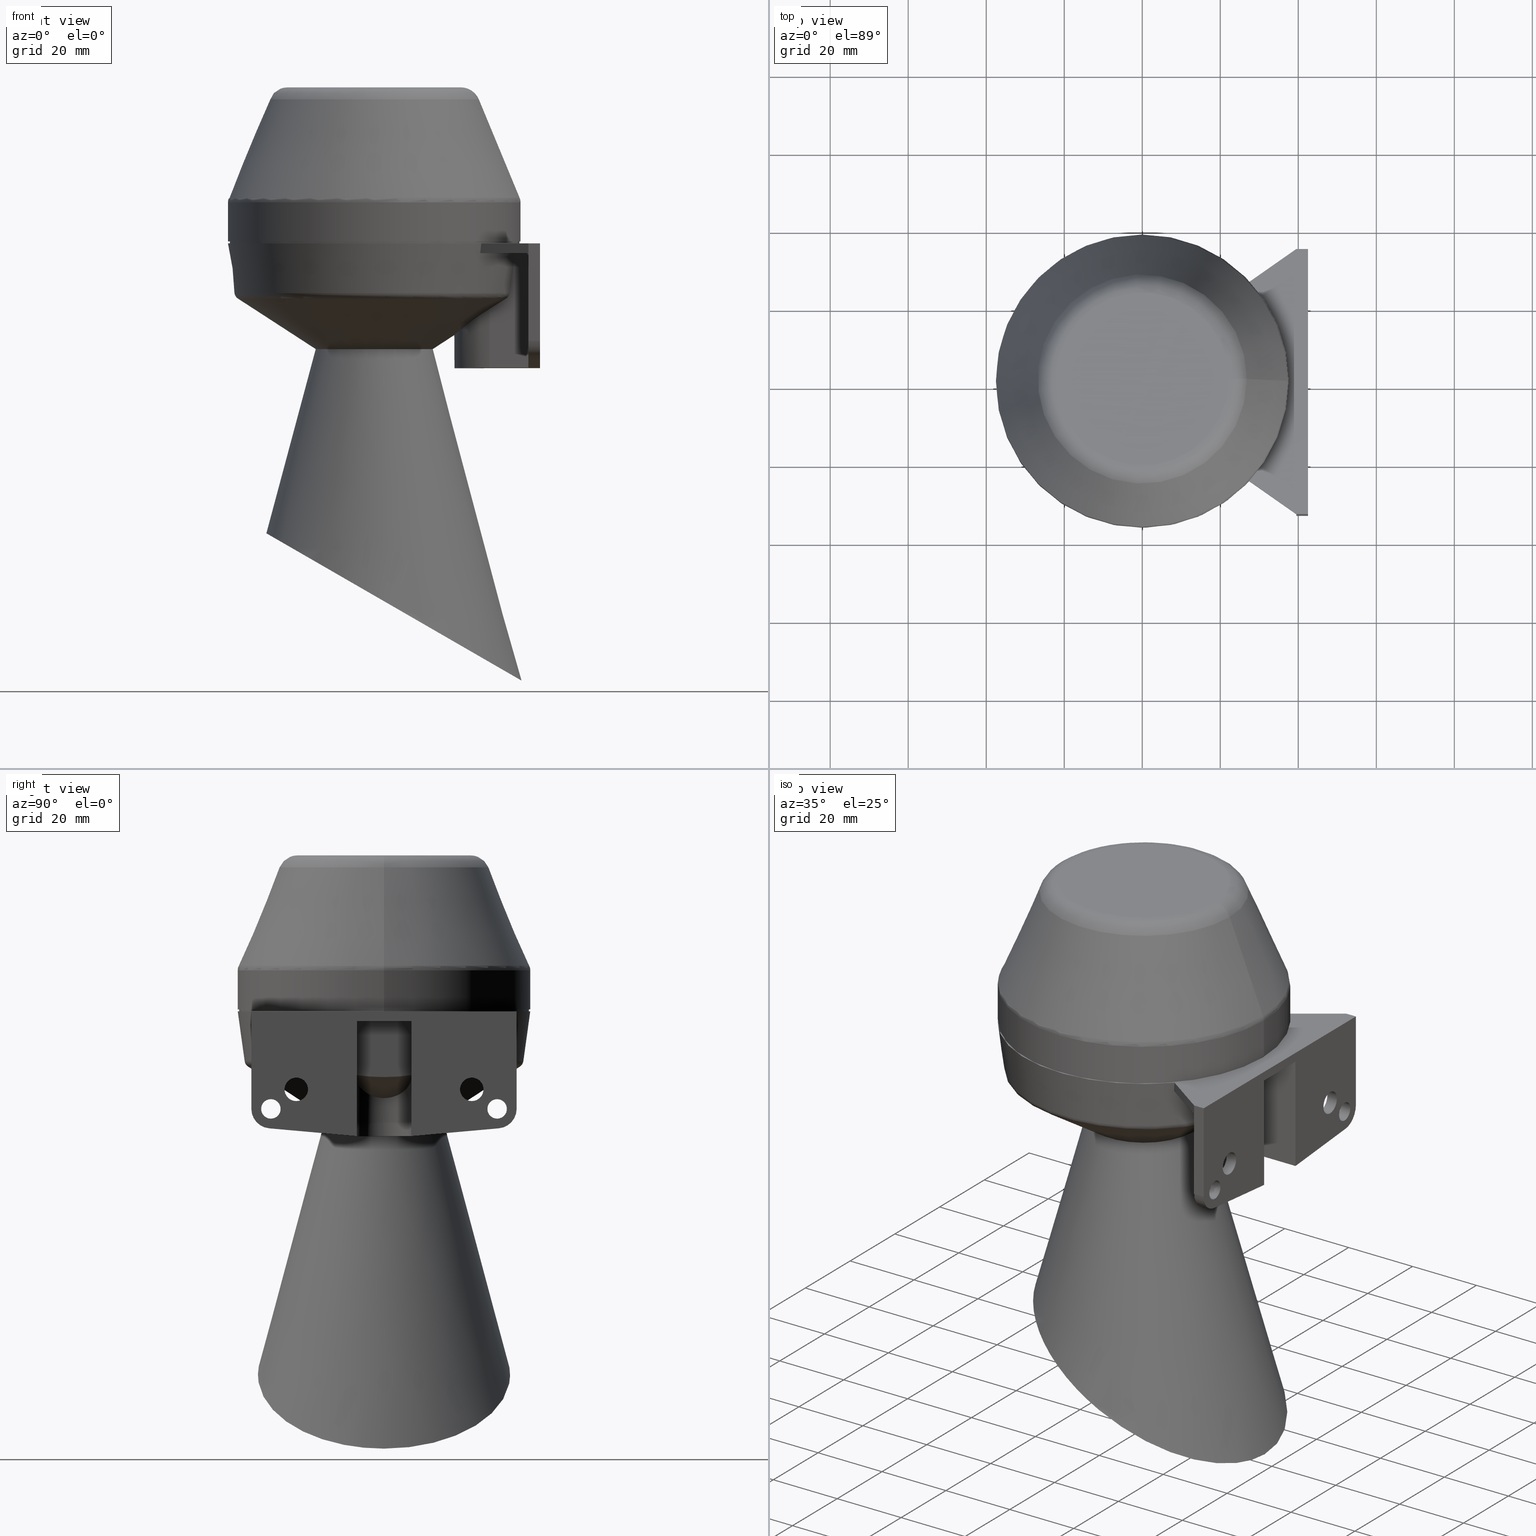
[diagram: canonical four-view strip — front | top / right | iso, engineering-drawing reading convention]
A machine part, canonical four-view strip (front | top / right | iso — engineering-drawing reading convention). The complete STEP part file that produces these views, byte-faithful:
ISO-10303-21;
HEADER;
/* Generated by software containing ST-Developer
 * from STEP Tools, Inc. (www.steptools.com) 
 */
/* OPTION: using custom schema-name function */

FILE_DESCRIPTION(
/* description */ (''),
/* implementation_level */ '2;1');

FILE_NAME(
/* name */ 'KLH.stp',
/* time_stamp */ '2014-09-25T14:30:39+02:00',
/* author */ (''),
/* organization */ (''),
/* preprocessor_version */ 'ST-DEVELOPER v11',
/* originating_system */ 'SIEMENS PLM Software NX 7.5',
/* authorisation */ '');

FILE_SCHEMA (('AUTOMOTIVE_DESIGN { 1 0 10303 214 1 1 1 1 }'));
ENDSEC;

DATA;
#10=SHAPE_REPRESENTATION_RELATIONSHIP('None',
'relationship between m.ne329Bg23a-None and m.ne329Bg23a-None',#22,#11);
#11=ADVANCED_BREP_SHAPE_REPRESENTATION('m.ne329Bg23a-None',(#32),#1647);
#12=SHAPE_DEFINITION_REPRESENTATION(#13,#22);
#13=PRODUCT_DEFINITION_SHAPE('','',#14);
#14=PRODUCT_DEFINITION(' ','',#16,#15);
#15=PRODUCT_DEFINITION_CONTEXT('part definition',#21,'design');
#16=PRODUCT_DEFINITION_FORMATION_WITH_SPECIFIED_SOURCE(' ',' ',#18,.NOT_KNOWN.);
#17=PRODUCT_RELATED_PRODUCT_CATEGORY('part','',(#18));
#18=PRODUCT('m.ne329Bg23a','m.ne329Bg23a',' ',(#19));
#19=PRODUCT_CONTEXT(' ',#21,'mechanical');
#20=APPLICATION_PROTOCOL_DEFINITION('international standard',
'automotive_design',2001,#21);
#21=APPLICATION_CONTEXT(
'core data for automotive mechanical design processes');
#22=SHAPE_REPRESENTATION('m.ne329Bg23a-None',(#900),#1647);
#23=PRESENTATION_LAYER_ASSIGNMENT('1','Layer 1',(#32));
#24=STYLED_ITEM('',(#25),#32);
#25=PRESENTATION_STYLE_ASSIGNMENT((#26));
#26=SURFACE_STYLE_USAGE(.BOTH.,#27);
#27=SURFACE_SIDE_STYLE('',(#28));
#28=SURFACE_STYLE_FILL_AREA(#29);
#29=FILL_AREA_STYLE('',(#30));
#30=FILL_AREA_STYLE_COLOUR('',#31);
#31=COLOUR_RGB('Silver Gray',0.6,0.6,0.6);
#32=MANIFOLD_SOLID_BREP('',#33);
#33=CLOSED_SHELL('',(#219,#220,#221,#222,#223,#224,#225,#226,#227,#228,#229,
#230,#231,#232,#233,#234,#235,#236,#237,#238,#239,#240,#241,#242,#243,#244,
#245,#246,#247,#248,#249,#250,#251,#252,#253,#254,#255,#256,#257,#258,#259,
#260,#261,#262,#263,#264,#265,#266,#267,#268,#269,#270,#271,#272,#273,#274));
#34=B_SPLINE_CURVE_WITH_KNOTS('',3,(#1347,#1348,#1349,#1350,#1351,#1352,
#1353,#1354,#1355,#1356,#1357,#1358,#1359,#1360,#1361,#1362,#1363,#1364,
#1365,#1366,#1367,#1368,#1369,#1370,#1371,#1372,#1373,#1374,#1375,#1376,
#1377,#1378,#1379,#1380,#1381,#1382,#1383,#1384,#1385,#1386,#1387),.UNSPECIFIED.,
 .F.,.F.,(4,2,2,2,2,2,2,2,2,2,1,2,2,2,2,2,2,2,2,2,4),(0.,0.125,0.15625,0.1875,
0.25,0.3125,0.375000000000001,0.406250000000001,0.437500000000001,0.468750000000001,
0.500000000000001,0.531250000000001,0.562500000000001,0.593750000000001,
0.625000000000001,0.687500000000001,0.750000000000001,0.8125,0.875,0.9375,
1.),.UNSPECIFIED.);
#35=B_SPLINE_CURVE_WITH_KNOTS('',3,(#1390,#1391,#1392,#1393),.UNSPECIFIED.,
 .F.,.F.,(4,4),(0.,1.),.UNSPECIFIED.);
#36=B_SPLINE_CURVE_WITH_KNOTS('',3,(#1395,#1396,#1397,#1398,#1399,#1400,
#1401,#1402),.UNSPECIFIED.,.F.,.F.,(4,2,2,4),(0.,0.5,0.75,1.),.UNSPECIFIED.);
#37=B_SPLINE_CURVE_WITH_KNOTS('',3,(#1404,#1405,#1406,#1407),.UNSPECIFIED.,
 .F.,.F.,(4,4),(0.,1.),.UNSPECIFIED.);
#38=B_SPLINE_CURVE_WITH_KNOTS('',3,(#1453,#1454,#1455,#1456),.UNSPECIFIED.,
 .F.,.F.,(4,4),(0.,1.),.UNSPECIFIED.);
#39=B_SPLINE_CURVE_WITH_KNOTS('',3,(#1458,#1459,#1460,#1461),.UNSPECIFIED.,
 .F.,.F.,(4,4),(0.,1.),.UNSPECIFIED.);
#40=B_SPLINE_CURVE_WITH_KNOTS('',3,(#1526,#1527,#1528,#1529),.UNSPECIFIED.,
 .F.,.F.,(4,4),(0.,1.),.UNSPECIFIED.);
#41=B_SPLINE_CURVE_WITH_KNOTS('',3,(#1533,#1534,#1535,#1536),.UNSPECIFIED.,
 .F.,.F.,(4,4),(0.,1.),.UNSPECIFIED.);
#42=B_SPLINE_CURVE_WITH_KNOTS('',3,(#1564,#1565,#1566,#1567),.UNSPECIFIED.,
 .F.,.F.,(4,4),(0.,1.),.UNSPECIFIED.);
#43=B_SPLINE_CURVE_WITH_KNOTS('',3,(#1569,#1570,#1571,#1572,#1573,#1574,
#1575,#1576),.UNSPECIFIED.,.F.,.F.,(4,2,2,4),(0.,0.249999999999998,0.499999999999995,
1.),.UNSPECIFIED.);
#44=B_SPLINE_CURVE_WITH_KNOTS('',3,(#1580,#1581,#1582,#1583,#1584,#1585,
#1586,#1587),.UNSPECIFIED.,.F.,.F.,(4,2,2,4),(0.,0.250000000000001,0.500000000000001,
1.),.UNSPECIFIED.);
#45=B_SPLINE_CURVE_WITH_KNOTS('',3,(#1591,#1592,#1593,#1594),.UNSPECIFIED.,
 .F.,.F.,(4,4),(0.,1.),.UNSPECIFIED.);
#46=B_SPLINE_CURVE_WITH_KNOTS('',3,(#1596,#1597,#1598,#1599,#1600,#1601,
#1602,#1603,#1604,#1605,#1606,#1607,#1608,#1609,#1610,#1611,#1612,#1613,
#1614,#1615,#1616,#1617,#1618,#1619,#1620,#1621,#1622,#1623,#1624,#1625,
#1626,#1627,#1628,#1629,#1630,#1631,#1632,#1633,#1634,#1635,#1636,#1637,
#1638,#1639,#1640,#1641,#1642,#1643),.UNSPECIFIED.,.F.,.F.,(4,2,2,2,2,2,
2,2,2,2,2,2,2,2,2,2,2,2,2,2,2,2,2,4),(0.,0.0624999999999998,0.125,0.15625,
0.187499999999999,0.249999999999999,0.312499999999999,0.374999999999999,
0.406249999999999,0.437499999999999,0.468749999999999,0.499999999999999,
0.531249999999999,0.562499999999999,0.593749999999998,0.624999999999998,
0.687499999999998,0.718749999999998,0.749999999999998,0.812499999999999,
0.843749999999999,0.874999999999999,0.9375,1.),.UNSPECIFIED.);
#47=ELLIPSE('',#941,37.7756813566454,32.3208607735226);
#48=ELLIPSE('',#942,35.3261916138622,30.2250781403726);
#49=ELLIPSE('',#980,7.0277905327389,7.);
#50=ELLIPSE('',#981,7.0277905327389,7.);
#51=ELLIPSE('',#993,9.03573068495001,9.);
#52=ELLIPSE('',#997,9.03573068495001,9.);
#53=LINE('',#1289,#102);
#54=LINE('',#1291,#103);
#55=LINE('',#1293,#104);
#56=LINE('',#1295,#105);
#57=LINE('',#1297,#106);
#58=LINE('',#1409,#107);
#59=LINE('',#1411,#108);
#60=LINE('',#1413,#109);
#61=LINE('',#1415,#110);
#62=LINE('',#1419,#111);
#63=LINE('',#1421,#112);
#64=LINE('',#1425,#113);
#65=LINE('',#1427,#114);
#66=LINE('',#1429,#115);
#67=LINE('',#1431,#116);
#68=LINE('',#1433,#117);
#69=LINE('',#1436,#118);
#70=LINE('',#1437,#119);
#71=LINE('',#1439,#120);
#72=LINE('',#1451,#121);
#73=LINE('',#1463,#122);
#74=LINE('',#1465,#123);
#75=LINE('',#1472,#124);
#76=LINE('',#1474,#125);
#77=LINE('',#1476,#126);
#78=LINE('',#1483,#127);
#79=LINE('',#1485,#128);
#80=LINE('',#1487,#129);
#81=LINE('',#1493,#130);
#82=LINE('',#1497,#131);
#83=LINE('',#1506,#132);
#84=LINE('',#1509,#133);
#85=LINE('',#1511,#134);
#86=LINE('',#1513,#135);
#87=LINE('',#1514,#136);
#88=LINE('',#1518,#137);
#89=LINE('',#1520,#138);
#90=LINE('',#1522,#139);
#91=LINE('',#1524,#140);
#92=LINE('',#1540,#141);
#93=LINE('',#1542,#142);
#94=LINE('',#1544,#143);
#95=LINE('',#1546,#144);
#96=LINE('',#1548,#145);
#97=LINE('',#1552,#146);
#98=LINE('',#1554,#147);
#99=LINE('',#1560,#148);
#100=LINE('',#1562,#149);
#101=LINE('',#1589,#150);
#102=VECTOR('',#1037,1.);
#103=VECTOR('',#1038,1.);
#104=VECTOR('',#1039,1.);
#105=VECTOR('',#1040,1.);
#106=VECTOR('',#1041,1.);
#107=VECTOR('',#1110,1.);
#108=VECTOR('',#1111,1.);
#109=VECTOR('',#1112,1.);
#110=VECTOR('',#1115,1.);
#111=VECTOR('',#1118,1.);
#112=VECTOR('',#1121,1.);
#113=VECTOR('',#1124,1.);
#114=VECTOR('',#1127,1.);
#115=VECTOR('',#1128,1.);
#116=VECTOR('',#1129,1.);
#117=VECTOR('',#1132,1.);
#118=VECTOR('',#1133,1.);
#119=VECTOR('',#1134,1.);
#120=VECTOR('',#1135,1.);
#121=VECTOR('',#1150,1.);
#122=VECTOR('',#1153,1.);
#123=VECTOR('',#1154,1.);
#124=VECTOR('',#1163,1.);
#125=VECTOR('',#1164,1.);
#126=VECTOR('',#1165,1.);
#127=VECTOR('',#1174,1.);
#128=VECTOR('',#1175,1.);
#129=VECTOR('',#1176,1.);
#130=VECTOR('',#1183,1.);
#131=VECTOR('',#1188,1.);
#132=VECTOR('',#1197,1.);
#133=VECTOR('',#1202,1.);
#134=VECTOR('',#1203,1.);
#135=VECTOR('',#1206,1.);
#136=VECTOR('',#1207,1.);
#137=VECTOR('',#1212,1.);
#138=VECTOR('',#1213,1.);
#139=VECTOR('',#1216,1.);
#140=VECTOR('',#1217,1.);
#141=VECTOR('',#1226,1.);
#142=VECTOR('',#1227,1.);
#143=VECTOR('',#1230,1.);
#144=VECTOR('',#1231,1.);
#145=VECTOR('',#1234,1.);
#146=VECTOR('',#1237,1.);
#147=VECTOR('',#1240,1.);
#148=VECTOR('',#1247,1.);
#149=VECTOR('',#1250,1.);
#150=VECTOR('',#1257,1.);
#151=FACE_OUTER_BOUND('',#366,.T.);
#152=FACE_OUTER_BOUND('',#387,.T.);
#153=FACE_OUTER_BOUND('',#400,.T.);
#154=FACE_OUTER_BOUND('',#401,.T.);
#155=FACE_OUTER_BOUND('',#402,.T.);
#156=FACE_OUTER_BOUND('',#403,.T.);
#157=FACE_OUTER_BOUND('',#404,.T.);
#158=FACE_OUTER_BOUND('',#405,.T.);
#159=FACE_OUTER_BOUND('',#410,.T.);
#160=FACE_OUTER_BOUND('',#411,.T.);
#161=FACE_OUTER_BOUND('',#414,.T.);
#162=FACE_OUTER_BOUND('',#417,.T.);
#163=FACE_OUTER_BOUND('',#418,.T.);
#164=FACE_OUTER_BOUND('',#419,.T.);
#165=FACE_OUTER_BOUND('',#420,.T.);
#166=FACE_OUTER_BOUND('',#421,.T.);
#167=FACE_OUTER_BOUND('',#427,.T.);
#168=FACE_OUTER_BOUND('',#431,.T.);
#169=FACE_OUTER_BOUND('',#432,.T.);
#170=FACE_OUTER_BOUND('',#436,.T.);
#171=FACE_OUTER_BOUND('',#437,.T.);
#172=FACE_OUTER_BOUND('',#438,.T.);
#173=FACE_OUTER_BOUND('',#439,.T.);
#174=FACE_OUTER_BOUND('',#440,.T.);
#175=FACE_OUTER_BOUND('',#441,.T.);
#176=FACE_OUTER_BOUND('',#442,.T.);
#177=CONICAL_SURFACE('',#911,26.8139382771996,22.5);
#178=CONICAL_SURFACE('',#925,8.60000000000048,30.0000000000005);
#179=CONICAL_SURFACE('',#929,6.07017059221738,29.9999999999998);
#180=CONICAL_SURFACE('',#938,2.27017059221708,29.9999999999998);
#181=CONICAL_SURFACE('',#945,37.7756813566454,15.);
#182=CONICAL_SURFACE('',#947,35.8438297040673,15.);
#183=CONICAL_SURFACE('',#949,14.9999999999999,57.0148785275704);
#184=CONICAL_SURFACE('',#990,35.8345518563749,7.45024906865622);
#185=CONICAL_SURFACE('',#1004,14.9999999999999,57.0148785275704);
#186=TOROIDAL_SURFACE('',#909,34.5,3.);
#187=TOROIDAL_SURFACE('',#913,22.1945406146432,5.);
#188=TOROIDAL_SURFACE('',#1001,33.8514362048118,1.99999999999999);
#189=PLANE('',#905);
#190=PLANE('',#914);
#191=PLANE('',#916);
#192=PLANE('',#919);
#193=PLANE('',#924);
#194=PLANE('',#927);
#195=PLANE('',#931);
#196=PLANE('',#935);
#197=PLANE('',#937);
#198=PLANE('',#943);
#199=PLANE('',#948);
#200=PLANE('',#950);
#201=PLANE('',#952);
#202=PLANE('',#955);
#203=PLANE('',#956);
#204=PLANE('',#963);
#205=PLANE('',#964);
#206=PLANE('',#968);
#207=PLANE('',#972);
#208=PLANE('',#983);
#209=PLANE('',#984);
#210=PLANE('',#986);
#211=PLANE('',#987);
#212=PLANE('',#991);
#213=PLANE('',#992);
#214=PLANE('',#994);
#215=PLANE('',#996);
#216=PLANE('',#998);
#217=PLANE('',#999);
#218=PLANE('',#1002);
#219=ADVANCED_FACE('',(#289,#290),#275,.T.);
#220=ADVANCED_FACE('',(#291,#292),#189,.T.);
#221=ADVANCED_FACE('',(#293,#294),#276,.T.);
#222=ADVANCED_FACE('',(#295,#296),#186,.T.);
#223=ADVANCED_FACE('',(#297,#298),#177,.T.);
#224=ADVANCED_FACE('',(#299,#300),#187,.T.);
#225=ADVANCED_FACE('',(#151),#190,.T.);
#226=ADVANCED_FACE('',(#301,#302),#191,.T.);
#227=ADVANCED_FACE('',(#303,#304),#192,.F.);
#228=ADVANCED_FACE('',(#305,#306),#277,.F.);
#229=ADVANCED_FACE('',(#307,#308),#193,.T.);
#230=ADVANCED_FACE('',(#309,#310),#178,.T.);
#231=ADVANCED_FACE('',(#311,#312),#194,.F.);
#232=ADVANCED_FACE('',(#313,#314),#179,.T.);
#233=ADVANCED_FACE('',(#315,#316),#195,.F.);
#234=ADVANCED_FACE('',(#317,#318),#278,.F.);
#235=ADVANCED_FACE('',(#319,#320),#196,.F.);
#236=ADVANCED_FACE('',(#152),#197,.T.);
#237=ADVANCED_FACE('',(#321,#322),#180,.T.);
#238=ADVANCED_FACE('',(#323,#324),#279,.F.);
#239=ADVANCED_FACE('',(#325,#326),#198,.T.);
#240=ADVANCED_FACE('',(#327,#328),#181,.T.);
#241=ADVANCED_FACE('',(#329,#330),#182,.F.);
#242=ADVANCED_FACE('',(#331,#332),#199,.T.);
#243=ADVANCED_FACE('',(#153),#183,.T.);
#244=ADVANCED_FACE('',(#154),#200,.F.);
#245=ADVANCED_FACE('',(#155),#201,.T.);
#246=ADVANCED_FACE('',(#156),#280,.F.);
#247=ADVANCED_FACE('',(#157),#202,.T.);
#248=ADVANCED_FACE('',(#158),#203,.T.);
#249=ADVANCED_FACE('',(#333,#334),#281,.F.);
#250=ADVANCED_FACE('',(#335,#336),#282,.F.);
#251=ADVANCED_FACE('',(#159),#204,.T.);
#252=ADVANCED_FACE('',(#160),#205,.T.);
#253=ADVANCED_FACE('',(#337,#338),#283,.F.);
#254=ADVANCED_FACE('',(#161),#206,.F.);
#255=ADVANCED_FACE('',(#339,#340),#284,.F.);
#256=ADVANCED_FACE('',(#162),#207,.F.);
#257=ADVANCED_FACE('',(#163),#285,.T.);
#258=ADVANCED_FACE('',(#164),#286,.T.);
#259=ADVANCED_FACE('',(#165),#287,.F.);
#260=ADVANCED_FACE('',(#166),#208,.F.);
#261=ADVANCED_FACE('',(#341,#342,#343,#344,#345),#209,.T.);
#262=ADVANCED_FACE('',(#167),#210,.T.);
#263=ADVANCED_FACE('',(#346,#347,#348),#211,.T.);
#264=ADVANCED_FACE('',(#168),#184,.T.);
#265=ADVANCED_FACE('',(#169),#212,.T.);
#266=ADVANCED_FACE('',(#349,#350,#351),#213,.T.);
#267=ADVANCED_FACE('',(#170),#214,.F.);
#268=ADVANCED_FACE('',(#171),#215,.T.);
#269=ADVANCED_FACE('',(#172),#216,.F.);
#270=ADVANCED_FACE('',(#173),#217,.F.);
#271=ADVANCED_FACE('',(#174),#188,.T.);
#272=ADVANCED_FACE('',(#175),#218,.F.);
#273=ADVANCED_FACE('',(#176),#288,.T.);
#274=ADVANCED_FACE('',(#352,#353),#185,.T.);
#275=CYLINDRICAL_SURFACE('',#903,37.2);
#276=CYLINDRICAL_SURFACE('',#907,37.5);
#277=CYLINDRICAL_SURFACE('',#922,7.00000000000006);
#278=CYLINDRICAL_SURFACE('',#933,3.20000000000019);
#279=CYLINDRICAL_SURFACE('',#940,10.5);
#280=CYLINDRICAL_SURFACE('',#954,34.);
#281=CYLINDRICAL_SURFACE('',#959,2.5);
#282=CYLINDRICAL_SURFACE('',#962,3.);
#283=CYLINDRICAL_SURFACE('',#967,2.5);
#284=CYLINDRICAL_SURFACE('',#971,3.);
#285=CYLINDRICAL_SURFACE('',#975,4.99999999999999);
#286=CYLINDRICAL_SURFACE('',#978,4.99999999999999);
#287=CYLINDRICAL_SURFACE('',#982,7.);
#288=CYLINDRICAL_SURFACE('',#1003,9.);
#289=FACE_BOUND('',#354,.T.);
#290=FACE_BOUND('',#355,.T.);
#291=FACE_BOUND('',#356,.T.);
#292=FACE_BOUND('',#357,.T.);
#293=FACE_BOUND('',#358,.T.);
#294=FACE_BOUND('',#359,.T.);
#295=FACE_BOUND('',#360,.T.);
#296=FACE_BOUND('',#361,.T.);
#297=FACE_BOUND('',#362,.T.);
#298=FACE_BOUND('',#363,.T.);
#299=FACE_BOUND('',#364,.T.);
#300=FACE_BOUND('',#365,.T.);
#301=FACE_BOUND('',#367,.T.);
#302=FACE_BOUND('',#368,.T.);
#303=FACE_BOUND('',#369,.T.);
#304=FACE_BOUND('',#370,.T.);
#305=FACE_BOUND('',#371,.T.);
#306=FACE_BOUND('',#372,.T.);
#307=FACE_BOUND('',#373,.T.);
#308=FACE_BOUND('',#374,.T.);
#309=FACE_BOUND('',#375,.T.);
#310=FACE_BOUND('',#376,.T.);
#311=FACE_BOUND('',#377,.T.);
#312=FACE_BOUND('',#378,.T.);
#313=FACE_BOUND('',#379,.T.);
#314=FACE_BOUND('',#380,.T.);
#315=FACE_BOUND('',#381,.T.);
#316=FACE_BOUND('',#382,.T.);
#317=FACE_BOUND('',#383,.T.);
#318=FACE_BOUND('',#384,.T.);
#319=FACE_BOUND('',#385,.T.);
#320=FACE_BOUND('',#386,.T.);
#321=FACE_BOUND('',#388,.T.);
#322=FACE_BOUND('',#389,.T.);
#323=FACE_BOUND('',#390,.T.);
#324=FACE_BOUND('',#391,.T.);
#325=FACE_BOUND('',#392,.T.);
#326=FACE_BOUND('',#393,.T.);
#327=FACE_BOUND('',#394,.T.);
#328=FACE_BOUND('',#395,.T.);
#329=FACE_BOUND('',#396,.T.);
#330=FACE_BOUND('',#397,.T.);
#331=FACE_BOUND('',#398,.T.);
#332=FACE_BOUND('',#399,.T.);
#333=FACE_BOUND('',#406,.T.);
#334=FACE_BOUND('',#407,.T.);
#335=FACE_BOUND('',#408,.T.);
#336=FACE_BOUND('',#409,.T.);
#337=FACE_BOUND('',#412,.T.);
#338=FACE_BOUND('',#413,.T.);
#339=FACE_BOUND('',#415,.T.);
#340=FACE_BOUND('',#416,.T.);
#341=FACE_BOUND('',#422,.T.);
#342=FACE_BOUND('',#423,.T.);
#343=FACE_BOUND('',#424,.T.);
#344=FACE_BOUND('',#425,.T.);
#345=FACE_BOUND('',#426,.T.);
#346=FACE_BOUND('',#428,.T.);
#347=FACE_BOUND('',#429,.T.);
#348=FACE_BOUND('',#430,.T.);
#349=FACE_BOUND('',#433,.T.);
#350=FACE_BOUND('',#434,.T.);
#351=FACE_BOUND('',#435,.T.);
#352=FACE_BOUND('',#443,.T.);
#353=FACE_BOUND('',#444,.T.);
#354=EDGE_LOOP('',(#445));
#355=EDGE_LOOP('',(#446));
#356=EDGE_LOOP('',(#447));
#357=EDGE_LOOP('',(#448));
#358=EDGE_LOOP('',(#449));
#359=EDGE_LOOP('',(#450));
#360=EDGE_LOOP('',(#451));
#361=EDGE_LOOP('',(#452));
#362=EDGE_LOOP('',(#453));
#363=EDGE_LOOP('',(#454));
#364=EDGE_LOOP('',(#455));
#365=EDGE_LOOP('',(#456));
#366=EDGE_LOOP('',(#457));
#367=EDGE_LOOP('',(#458,#459,#460,#461,#462,#463));
#368=EDGE_LOOP('',(#464));
#369=EDGE_LOOP('',(#465));
#370=EDGE_LOOP('',(#466));
#371=EDGE_LOOP('',(#467));
#372=EDGE_LOOP('',(#468));
#373=EDGE_LOOP('',(#469));
#374=EDGE_LOOP('',(#470));
#375=EDGE_LOOP('',(#471));
#376=EDGE_LOOP('',(#472));
#377=EDGE_LOOP('',(#473));
#378=EDGE_LOOP('',(#474));
#379=EDGE_LOOP('',(#475));
#380=EDGE_LOOP('',(#476));
#381=EDGE_LOOP('',(#477));
#382=EDGE_LOOP('',(#478));
#383=EDGE_LOOP('',(#479));
#384=EDGE_LOOP('',(#480));
#385=EDGE_LOOP('',(#481));
#386=EDGE_LOOP('',(#482));
#387=EDGE_LOOP('',(#483));
#388=EDGE_LOOP('',(#484));
#389=EDGE_LOOP('',(#485));
#390=EDGE_LOOP('',(#486));
#391=EDGE_LOOP('',(#487));
#392=EDGE_LOOP('',(#488));
#393=EDGE_LOOP('',(#489));
#394=EDGE_LOOP('',(#490));
#395=EDGE_LOOP('',(#491));
#396=EDGE_LOOP('',(#492));
#397=EDGE_LOOP('',(#493));
#398=EDGE_LOOP('',(#494));
#399=EDGE_LOOP('',(#495));
#400=EDGE_LOOP('',(#496,#497,#498,#499));
#401=EDGE_LOOP('',(#500,#501,#502,#503));
#402=EDGE_LOOP('',(#504,#505,#506,#507));
#403=EDGE_LOOP('',(#508,#509,#510,#511));
#404=EDGE_LOOP('',(#512,#513,#514,#515));
#405=EDGE_LOOP('',(#516,#517,#518,#519,#520));
#406=EDGE_LOOP('',(#521));
#407=EDGE_LOOP('',(#522));
#408=EDGE_LOOP('',(#523));
#409=EDGE_LOOP('',(#524));
#410=EDGE_LOOP('',(#525,#526,#527,#528));
#411=EDGE_LOOP('',(#529,#530,#531,#532));
#412=EDGE_LOOP('',(#533));
#413=EDGE_LOOP('',(#534));
#414=EDGE_LOOP('',(#535,#536,#537,#538,#539));
#415=EDGE_LOOP('',(#540));
#416=EDGE_LOOP('',(#541));
#417=EDGE_LOOP('',(#542,#543,#544,#545,#546,#547,#548,#549));
#418=EDGE_LOOP('',(#550,#551,#552,#553));
#419=EDGE_LOOP('',(#554,#555,#556,#557));
#420=EDGE_LOOP('',(#558,#559,#560,#561,#562,#563));
#421=EDGE_LOOP('',(#564,#565,#566,#567,#568,#569,#570,#571));
#422=EDGE_LOOP('',(#572));
#423=EDGE_LOOP('',(#573));
#424=EDGE_LOOP('',(#574));
#425=EDGE_LOOP('',(#575,#576,#577,#578,#579,#580,#581,#582,#583,#584));
#426=EDGE_LOOP('',(#585));
#427=EDGE_LOOP('',(#586,#587,#588,#589));
#428=EDGE_LOOP('',(#590));
#429=EDGE_LOOP('',(#591));
#430=EDGE_LOOP('',(#592,#593,#594,#595,#596));
#431=EDGE_LOOP('',(#597,#598,#599,#600,#601,#602,#603,#604));
#432=EDGE_LOOP('',(#605,#606,#607,#608));
#433=EDGE_LOOP('',(#609));
#434=EDGE_LOOP('',(#610,#611,#612,#613,#614));
#435=EDGE_LOOP('',(#615));
#436=EDGE_LOOP('',(#616,#617,#618,#619,#620,#621,#622,#623));
#437=EDGE_LOOP('',(#624,#625,#626,#627));
#438=EDGE_LOOP('',(#628,#629,#630,#631,#632,#633,#634,#635));
#439=EDGE_LOOP('',(#636,#637,#638,#639,#640,#641,#642));
#440=EDGE_LOOP('',(#643,#644,#645,#646));
#441=EDGE_LOOP('',(#647,#648,#649,#650,#651,#652,#653));
#442=EDGE_LOOP('',(#654,#655,#656,#657,#658,#659));
#443=EDGE_LOOP('',(#660,#661,#662,#663));
#444=EDGE_LOOP('',(#664));
#445=ORIENTED_EDGE('',*,*,#748,.T.);
#446=ORIENTED_EDGE('',*,*,#749,.F.);
#447=ORIENTED_EDGE('',*,*,#749,.T.);
#448=ORIENTED_EDGE('',*,*,#750,.F.);
#449=ORIENTED_EDGE('',*,*,#750,.T.);
#450=ORIENTED_EDGE('',*,*,#751,.F.);
#451=ORIENTED_EDGE('',*,*,#751,.T.);
#452=ORIENTED_EDGE('',*,*,#752,.F.);
#453=ORIENTED_EDGE('',*,*,#752,.T.);
#454=ORIENTED_EDGE('',*,*,#753,.F.);
#455=ORIENTED_EDGE('',*,*,#753,.T.);
#456=ORIENTED_EDGE('',*,*,#754,.F.);
#457=ORIENTED_EDGE('',*,*,#754,.T.);
#458=ORIENTED_EDGE('',*,*,#755,.F.);
#459=ORIENTED_EDGE('',*,*,#756,.T.);
#460=ORIENTED_EDGE('',*,*,#757,.F.);
#461=ORIENTED_EDGE('',*,*,#758,.F.);
#462=ORIENTED_EDGE('',*,*,#759,.T.);
#463=ORIENTED_EDGE('',*,*,#760,.T.);
#464=ORIENTED_EDGE('',*,*,#748,.F.);
#465=ORIENTED_EDGE('',*,*,#761,.F.);
#466=ORIENTED_EDGE('',*,*,#762,.F.);
#467=ORIENTED_EDGE('',*,*,#763,.T.);
#468=ORIENTED_EDGE('',*,*,#764,.T.);
#469=ORIENTED_EDGE('',*,*,#763,.F.);
#470=ORIENTED_EDGE('',*,*,#765,.T.);
#471=ORIENTED_EDGE('',*,*,#765,.F.);
#472=ORIENTED_EDGE('',*,*,#761,.T.);
#473=ORIENTED_EDGE('',*,*,#764,.F.);
#474=ORIENTED_EDGE('',*,*,#766,.T.);
#475=ORIENTED_EDGE('',*,*,#767,.F.);
#476=ORIENTED_EDGE('',*,*,#766,.F.);
#477=ORIENTED_EDGE('',*,*,#767,.T.);
#478=ORIENTED_EDGE('',*,*,#768,.F.);
#479=ORIENTED_EDGE('',*,*,#768,.T.);
#480=ORIENTED_EDGE('',*,*,#769,.F.);
#481=ORIENTED_EDGE('',*,*,#770,.F.);
#482=ORIENTED_EDGE('',*,*,#769,.T.);
#483=ORIENTED_EDGE('',*,*,#771,.F.);
#484=ORIENTED_EDGE('',*,*,#771,.T.);
#485=ORIENTED_EDGE('',*,*,#770,.T.);
#486=ORIENTED_EDGE('',*,*,#772,.T.);
#487=ORIENTED_EDGE('',*,*,#762,.T.);
#488=ORIENTED_EDGE('',*,*,#773,.F.);
#489=ORIENTED_EDGE('',*,*,#774,.T.);
#490=ORIENTED_EDGE('',*,*,#775,.T.);
#491=ORIENTED_EDGE('',*,*,#773,.T.);
#492=ORIENTED_EDGE('',*,*,#776,.F.);
#493=ORIENTED_EDGE('',*,*,#774,.F.);
#494=ORIENTED_EDGE('',*,*,#772,.F.);
#495=ORIENTED_EDGE('',*,*,#776,.T.);
#496=ORIENTED_EDGE('',*,*,#777,.T.);
#497=ORIENTED_EDGE('',*,*,#778,.F.);
#498=ORIENTED_EDGE('',*,*,#779,.T.);
#499=ORIENTED_EDGE('',*,*,#780,.F.);
#500=ORIENTED_EDGE('',*,*,#781,.F.);
#501=ORIENTED_EDGE('',*,*,#782,.F.);
#502=ORIENTED_EDGE('',*,*,#783,.T.);
#503=ORIENTED_EDGE('',*,*,#779,.F.);
#504=ORIENTED_EDGE('',*,*,#782,.T.);
#505=ORIENTED_EDGE('',*,*,#784,.T.);
#506=ORIENTED_EDGE('',*,*,#785,.F.);
#507=ORIENTED_EDGE('',*,*,#786,.T.);
#508=ORIENTED_EDGE('',*,*,#785,.T.);
#509=ORIENTED_EDGE('',*,*,#787,.F.);
#510=ORIENTED_EDGE('',*,*,#788,.F.);
#511=ORIENTED_EDGE('',*,*,#789,.F.);
#512=ORIENTED_EDGE('',*,*,#790,.F.);
#513=ORIENTED_EDGE('',*,*,#791,.F.);
#514=ORIENTED_EDGE('',*,*,#792,.F.);
#515=ORIENTED_EDGE('',*,*,#788,.T.);
#516=ORIENTED_EDGE('',*,*,#793,.F.);
#517=ORIENTED_EDGE('',*,*,#794,.T.);
#518=ORIENTED_EDGE('',*,*,#759,.F.);
#519=ORIENTED_EDGE('',*,*,#795,.F.);
#520=ORIENTED_EDGE('',*,*,#796,.F.);
#521=ORIENTED_EDGE('',*,*,#797,.T.);
#522=ORIENTED_EDGE('',*,*,#798,.T.);
#523=ORIENTED_EDGE('',*,*,#799,.T.);
#524=ORIENTED_EDGE('',*,*,#800,.T.);
#525=ORIENTED_EDGE('',*,*,#794,.F.);
#526=ORIENTED_EDGE('',*,*,#801,.F.);
#527=ORIENTED_EDGE('',*,*,#802,.T.);
#528=ORIENTED_EDGE('',*,*,#760,.F.);
#529=ORIENTED_EDGE('',*,*,#756,.F.);
#530=ORIENTED_EDGE('',*,*,#803,.F.);
#531=ORIENTED_EDGE('',*,*,#804,.F.);
#532=ORIENTED_EDGE('',*,*,#805,.T.);
#533=ORIENTED_EDGE('',*,*,#806,.F.);
#534=ORIENTED_EDGE('',*,*,#807,.F.);
#535=ORIENTED_EDGE('',*,*,#805,.F.);
#536=ORIENTED_EDGE('',*,*,#808,.T.);
#537=ORIENTED_EDGE('',*,*,#809,.T.);
#538=ORIENTED_EDGE('',*,*,#810,.T.);
#539=ORIENTED_EDGE('',*,*,#757,.T.);
#540=ORIENTED_EDGE('',*,*,#811,.T.);
#541=ORIENTED_EDGE('',*,*,#812,.T.);
#542=ORIENTED_EDGE('',*,*,#813,.F.);
#543=ORIENTED_EDGE('',*,*,#814,.T.);
#544=ORIENTED_EDGE('',*,*,#815,.F.);
#545=ORIENTED_EDGE('',*,*,#780,.T.);
#546=ORIENTED_EDGE('',*,*,#783,.F.);
#547=ORIENTED_EDGE('',*,*,#786,.F.);
#548=ORIENTED_EDGE('',*,*,#789,.T.);
#549=ORIENTED_EDGE('',*,*,#792,.T.);
#550=ORIENTED_EDGE('',*,*,#816,.T.);
#551=ORIENTED_EDGE('',*,*,#809,.F.);
#552=ORIENTED_EDGE('',*,*,#817,.T.);
#553=ORIENTED_EDGE('',*,*,#818,.T.);
#554=ORIENTED_EDGE('',*,*,#819,.T.);
#555=ORIENTED_EDGE('',*,*,#820,.F.);
#556=ORIENTED_EDGE('',*,*,#821,.T.);
#557=ORIENTED_EDGE('',*,*,#796,.T.);
#558=ORIENTED_EDGE('',*,*,#822,.F.);
#559=ORIENTED_EDGE('',*,*,#823,.T.);
#560=ORIENTED_EDGE('',*,*,#824,.F.);
#561=ORIENTED_EDGE('',*,*,#777,.F.);
#562=ORIENTED_EDGE('',*,*,#815,.T.);
#563=ORIENTED_EDGE('',*,*,#825,.T.);
#564=ORIENTED_EDGE('',*,*,#824,.T.);
#565=ORIENTED_EDGE('',*,*,#826,.T.);
#566=ORIENTED_EDGE('',*,*,#827,.F.);
#567=ORIENTED_EDGE('',*,*,#790,.T.);
#568=ORIENTED_EDGE('',*,*,#787,.T.);
#569=ORIENTED_EDGE('',*,*,#784,.F.);
#570=ORIENTED_EDGE('',*,*,#781,.T.);
#571=ORIENTED_EDGE('',*,*,#778,.T.);
#572=ORIENTED_EDGE('',*,*,#811,.F.);
#573=ORIENTED_EDGE('',*,*,#799,.F.);
#574=ORIENTED_EDGE('',*,*,#797,.F.);
#575=ORIENTED_EDGE('',*,*,#819,.F.);
#576=ORIENTED_EDGE('',*,*,#795,.T.);
#577=ORIENTED_EDGE('',*,*,#758,.T.);
#578=ORIENTED_EDGE('',*,*,#810,.F.);
#579=ORIENTED_EDGE('',*,*,#816,.F.);
#580=ORIENTED_EDGE('',*,*,#828,.F.);
#581=ORIENTED_EDGE('',*,*,#813,.T.);
#582=ORIENTED_EDGE('',*,*,#791,.T.);
#583=ORIENTED_EDGE('',*,*,#827,.T.);
#584=ORIENTED_EDGE('',*,*,#829,.F.);
#585=ORIENTED_EDGE('',*,*,#806,.T.);
#586=ORIENTED_EDGE('',*,*,#830,.T.);
#587=ORIENTED_EDGE('',*,*,#801,.T.);
#588=ORIENTED_EDGE('',*,*,#831,.T.);
#589=ORIENTED_EDGE('',*,*,#832,.F.);
#590=ORIENTED_EDGE('',*,*,#800,.F.);
#591=ORIENTED_EDGE('',*,*,#798,.F.);
#592=ORIENTED_EDGE('',*,*,#821,.F.);
#593=ORIENTED_EDGE('',*,*,#833,.F.);
#594=ORIENTED_EDGE('',*,*,#834,.T.);
#595=ORIENTED_EDGE('',*,*,#831,.F.);
#596=ORIENTED_EDGE('',*,*,#793,.T.);
#597=ORIENTED_EDGE('',*,*,#803,.T.);
#598=ORIENTED_EDGE('',*,*,#755,.T.);
#599=ORIENTED_EDGE('',*,*,#802,.F.);
#600=ORIENTED_EDGE('',*,*,#830,.F.);
#601=ORIENTED_EDGE('',*,*,#835,.T.);
#602=ORIENTED_EDGE('',*,*,#836,.F.);
#603=ORIENTED_EDGE('',*,*,#837,.T.);
#604=ORIENTED_EDGE('',*,*,#838,.F.);
#605=ORIENTED_EDGE('',*,*,#839,.T.);
#606=ORIENTED_EDGE('',*,*,#804,.T.);
#607=ORIENTED_EDGE('',*,*,#838,.T.);
#608=ORIENTED_EDGE('',*,*,#840,.F.);
#609=ORIENTED_EDGE('',*,*,#812,.F.);
#610=ORIENTED_EDGE('',*,*,#841,.F.);
#611=ORIENTED_EDGE('',*,*,#817,.F.);
#612=ORIENTED_EDGE('',*,*,#808,.F.);
#613=ORIENTED_EDGE('',*,*,#839,.F.);
#614=ORIENTED_EDGE('',*,*,#842,.T.);
#615=ORIENTED_EDGE('',*,*,#807,.T.);
#616=ORIENTED_EDGE('',*,*,#828,.T.);
#617=ORIENTED_EDGE('',*,*,#818,.F.);
#618=ORIENTED_EDGE('',*,*,#841,.T.);
#619=ORIENTED_EDGE('',*,*,#843,.F.);
#620=ORIENTED_EDGE('',*,*,#844,.F.);
#621=ORIENTED_EDGE('',*,*,#845,.T.);
#622=ORIENTED_EDGE('',*,*,#825,.F.);
#623=ORIENTED_EDGE('',*,*,#814,.F.);
#624=ORIENTED_EDGE('',*,*,#846,.F.);
#625=ORIENTED_EDGE('',*,*,#822,.T.);
#626=ORIENTED_EDGE('',*,*,#845,.F.);
#627=ORIENTED_EDGE('',*,*,#847,.T.);
#628=ORIENTED_EDGE('',*,*,#829,.T.);
#629=ORIENTED_EDGE('',*,*,#826,.F.);
#630=ORIENTED_EDGE('',*,*,#823,.F.);
#631=ORIENTED_EDGE('',*,*,#846,.T.);
#632=ORIENTED_EDGE('',*,*,#848,.F.);
#633=ORIENTED_EDGE('',*,*,#849,.F.);
#634=ORIENTED_EDGE('',*,*,#833,.T.);
#635=ORIENTED_EDGE('',*,*,#820,.T.);
#636=ORIENTED_EDGE('',*,*,#834,.F.);
#637=ORIENTED_EDGE('',*,*,#849,.T.);
#638=ORIENTED_EDGE('',*,*,#850,.F.);
#639=ORIENTED_EDGE('',*,*,#851,.F.);
#640=ORIENTED_EDGE('',*,*,#852,.F.);
#641=ORIENTED_EDGE('',*,*,#835,.F.);
#642=ORIENTED_EDGE('',*,*,#832,.T.);
#643=ORIENTED_EDGE('',*,*,#853,.F.);
#644=ORIENTED_EDGE('',*,*,#854,.T.);
#645=ORIENTED_EDGE('',*,*,#836,.T.);
#646=ORIENTED_EDGE('',*,*,#852,.T.);
#647=ORIENTED_EDGE('',*,*,#855,.T.);
#648=ORIENTED_EDGE('',*,*,#843,.T.);
#649=ORIENTED_EDGE('',*,*,#842,.F.);
#650=ORIENTED_EDGE('',*,*,#840,.T.);
#651=ORIENTED_EDGE('',*,*,#837,.F.);
#652=ORIENTED_EDGE('',*,*,#854,.F.);
#653=ORIENTED_EDGE('',*,*,#856,.F.);
#654=ORIENTED_EDGE('',*,*,#850,.T.);
#655=ORIENTED_EDGE('',*,*,#848,.T.);
#656=ORIENTED_EDGE('',*,*,#847,.F.);
#657=ORIENTED_EDGE('',*,*,#844,.T.);
#658=ORIENTED_EDGE('',*,*,#855,.F.);
#659=ORIENTED_EDGE('',*,*,#857,.F.);
#660=ORIENTED_EDGE('',*,*,#857,.T.);
#661=ORIENTED_EDGE('',*,*,#856,.T.);
#662=ORIENTED_EDGE('',*,*,#853,.T.);
#663=ORIENTED_EDGE('',*,*,#851,.T.);
#664=ORIENTED_EDGE('',*,*,#775,.F.);
#665=VERTEX_POINT('',#1266);
#666=VERTEX_POINT('',#1268);
#667=VERTEX_POINT('',#1271);
#668=VERTEX_POINT('',#1274);
#669=VERTEX_POINT('',#1277);
#670=VERTEX_POINT('',#1280);
#671=VERTEX_POINT('',#1283);
#672=VERTEX_POINT('',#1287);
#673=VERTEX_POINT('',#1288);
#674=VERTEX_POINT('',#1290);
#675=VERTEX_POINT('',#1292);
#676=VERTEX_POINT('',#1294);
#677=VERTEX_POINT('',#1296);
#678=VERTEX_POINT('',#1300);
#679=VERTEX_POINT('',#1302);
#680=VERTEX_POINT('',#1305);
#681=VERTEX_POINT('',#1307);
#682=VERTEX_POINT('',#1310);
#683=VERTEX_POINT('',#1314);
#684=VERTEX_POINT('',#1317);
#685=VERTEX_POINT('',#1320);
#686=VERTEX_POINT('',#1323);
#687=VERTEX_POINT('',#1326);
#688=VERTEX_POINT('',#1329);
#689=VERTEX_POINT('',#1333);
#690=VERTEX_POINT('',#1336);
#691=VERTEX_POINT('',#1338);
#692=VERTEX_POINT('',#1341);
#693=VERTEX_POINT('',#1344);
#694=VERTEX_POINT('',#1388);
#695=VERTEX_POINT('',#1389);
#696=VERTEX_POINT('',#1394);
#697=VERTEX_POINT('',#1403);
#698=VERTEX_POINT('',#1410);
#699=VERTEX_POINT('',#1412);
#700=VERTEX_POINT('',#1416);
#701=VERTEX_POINT('',#1418);
#702=VERTEX_POINT('',#1422);
#703=VERTEX_POINT('',#1424);
#704=VERTEX_POINT('',#1428);
#705=VERTEX_POINT('',#1430);
#706=VERTEX_POINT('',#1434);
#707=VERTEX_POINT('',#1435);
#708=VERTEX_POINT('',#1438);
#709=VERTEX_POINT('',#1442);
#710=VERTEX_POINT('',#1444);
#711=VERTEX_POINT('',#1447);
#712=VERTEX_POINT('',#1449);
#713=VERTEX_POINT('',#1452);
#714=VERTEX_POINT('',#1462);
#715=VERTEX_POINT('',#1464);
#716=VERTEX_POINT('',#1468);
#717=VERTEX_POINT('',#1470);
#718=VERTEX_POINT('',#1473);
#719=VERTEX_POINT('',#1475);
#720=VERTEX_POINT('',#1479);
#721=VERTEX_POINT('',#1481);
#722=VERTEX_POINT('',#1484);
#723=VERTEX_POINT('',#1486);
#724=VERTEX_POINT('',#1490);
#725=VERTEX_POINT('',#1492);
#726=VERTEX_POINT('',#1496);
#727=VERTEX_POINT('',#1498);
#728=VERTEX_POINT('',#1502);
#729=VERTEX_POINT('',#1503);
#730=VERTEX_POINT('',#1505);
#731=VERTEX_POINT('',#1510);
#732=VERTEX_POINT('',#1517);
#733=VERTEX_POINT('',#1519);
#734=VERTEX_POINT('',#1523);
#735=VERTEX_POINT('',#1530);
#736=VERTEX_POINT('',#1532);
#737=VERTEX_POINT('',#1537);
#738=VERTEX_POINT('',#1541);
#739=VERTEX_POINT('',#1545);
#740=VERTEX_POINT('',#1549);
#741=VERTEX_POINT('',#1551);
#742=VERTEX_POINT('',#1555);
#743=VERTEX_POINT('',#1559);
#744=VERTEX_POINT('',#1563);
#745=VERTEX_POINT('',#1568);
#746=VERTEX_POINT('',#1579);
#747=VERTEX_POINT('',#1590);
#748=EDGE_CURVE('',#665,#665,#858,.T.);
#749=EDGE_CURVE('',#666,#666,#859,.T.);
#750=EDGE_CURVE('',#667,#667,#860,.T.);
#751=EDGE_CURVE('',#668,#668,#861,.T.);
#752=EDGE_CURVE('',#669,#669,#862,.T.);
#753=EDGE_CURVE('',#670,#670,#863,.T.);
#754=EDGE_CURVE('',#671,#671,#864,.T.);
#755=EDGE_CURVE('',#672,#673,#865,.T.);
#756=EDGE_CURVE('',#672,#674,#53,.T.);
#757=EDGE_CURVE('',#675,#674,#54,.T.);
#758=EDGE_CURVE('',#676,#675,#55,.T.);
#759=EDGE_CURVE('',#676,#677,#56,.T.);
#760=EDGE_CURVE('',#677,#673,#57,.T.);
#761=EDGE_CURVE('',#678,#678,#866,.T.);
#762=EDGE_CURVE('',#679,#679,#867,.T.);
#763=EDGE_CURVE('',#680,#680,#868,.T.);
#764=EDGE_CURVE('',#681,#681,#869,.T.);
#765=EDGE_CURVE('',#682,#682,#870,.T.);
#766=EDGE_CURVE('',#683,#683,#871,.T.);
#767=EDGE_CURVE('',#684,#684,#872,.T.);
#768=EDGE_CURVE('',#685,#685,#873,.T.);
#769=EDGE_CURVE('',#686,#686,#874,.T.);
#770=EDGE_CURVE('',#687,#687,#875,.T.);
#771=EDGE_CURVE('',#688,#688,#876,.T.);
#772=EDGE_CURVE('',#689,#689,#877,.T.);
#773=EDGE_CURVE('',#690,#690,#47,.T.);
#774=EDGE_CURVE('',#691,#691,#48,.T.);
#775=EDGE_CURVE('',#692,#692,#878,.T.);
#776=EDGE_CURVE('',#693,#693,#879,.T.);
#777=EDGE_CURVE('',#694,#695,#34,.T.);
#778=EDGE_CURVE('',#696,#695,#35,.T.);
#779=EDGE_CURVE('',#696,#697,#36,.T.);
#780=EDGE_CURVE('',#694,#697,#37,.T.);
#781=EDGE_CURVE('',#698,#696,#58,.T.);
#782=EDGE_CURVE('',#699,#698,#59,.T.);
#783=EDGE_CURVE('',#699,#697,#60,.T.);
#784=EDGE_CURVE('',#698,#700,#61,.T.);
#785=EDGE_CURVE('',#701,#700,#880,.T.);
#786=EDGE_CURVE('',#701,#699,#62,.T.);
#787=EDGE_CURVE('',#702,#700,#63,.T.);
#788=EDGE_CURVE('',#703,#702,#881,.T.);
#789=EDGE_CURVE('',#701,#703,#64,.T.);
#790=EDGE_CURVE('',#704,#702,#65,.T.);
#791=EDGE_CURVE('',#705,#704,#66,.T.);
#792=EDGE_CURVE('',#703,#705,#67,.T.);
#793=EDGE_CURVE('',#706,#707,#68,.T.);
#794=EDGE_CURVE('',#706,#677,#69,.T.);
#795=EDGE_CURVE('',#708,#676,#70,.T.);
#796=EDGE_CURVE('',#707,#708,#71,.T.);
#797=EDGE_CURVE('',#709,#709,#882,.T.);
#798=EDGE_CURVE('',#710,#710,#883,.T.);
#799=EDGE_CURVE('',#711,#711,#884,.T.);
#800=EDGE_CURVE('',#712,#712,#885,.T.);
#801=EDGE_CURVE('',#713,#706,#72,.T.);
#802=EDGE_CURVE('',#713,#673,#38,.T.);
#803=EDGE_CURVE('',#714,#672,#39,.T.);
#804=EDGE_CURVE('',#715,#714,#73,.T.);
#805=EDGE_CURVE('',#715,#674,#74,.T.);
#806=EDGE_CURVE('',#716,#716,#886,.T.);
#807=EDGE_CURVE('',#717,#717,#887,.T.);
#808=EDGE_CURVE('',#715,#718,#75,.T.);
#809=EDGE_CURVE('',#718,#719,#76,.T.);
#810=EDGE_CURVE('',#719,#675,#77,.T.);
#811=EDGE_CURVE('',#720,#720,#888,.T.);
#812=EDGE_CURVE('',#721,#721,#889,.T.);
#813=EDGE_CURVE('',#722,#705,#78,.T.);
#814=EDGE_CURVE('',#722,#723,#79,.T.);
#815=EDGE_CURVE('',#694,#723,#80,.T.);
#816=EDGE_CURVE('',#724,#719,#890,.T.);
#817=EDGE_CURVE('',#718,#725,#891,.T.);
#818=EDGE_CURVE('',#725,#724,#81,.T.);
#819=EDGE_CURVE('',#708,#726,#892,.T.);
#820=EDGE_CURVE('',#727,#726,#82,.T.);
#821=EDGE_CURVE('',#727,#707,#893,.T.);
#822=EDGE_CURVE('',#728,#729,#894,.T.);
#823=EDGE_CURVE('',#728,#730,#49,.T.);
#824=EDGE_CURVE('',#695,#730,#83,.T.);
#825=EDGE_CURVE('',#723,#729,#50,.T.);
#826=EDGE_CURVE('',#730,#731,#84,.T.);
#827=EDGE_CURVE('',#704,#731,#85,.T.);
#828=EDGE_CURVE('',#722,#724,#86,.T.);
#829=EDGE_CURVE('',#726,#731,#87,.T.);
#830=EDGE_CURVE('',#732,#713,#895,.T.);
#831=EDGE_CURVE('',#706,#733,#88,.T.);
#832=EDGE_CURVE('',#732,#733,#89,.T.);
#833=EDGE_CURVE('',#734,#727,#90,.T.);
#834=EDGE_CURVE('',#734,#733,#91,.T.);
#835=EDGE_CURVE('',#732,#735,#40,.T.);
#836=EDGE_CURVE('',#736,#735,#896,.T.);
#837=EDGE_CURVE('',#736,#737,#41,.T.);
#838=EDGE_CURVE('',#714,#737,#897,.T.);
#839=EDGE_CURVE('',#738,#715,#92,.T.);
#840=EDGE_CURVE('',#738,#737,#93,.T.);
#841=EDGE_CURVE('',#725,#739,#94,.T.);
#842=EDGE_CURVE('',#738,#739,#95,.T.);
#843=EDGE_CURVE('',#740,#739,#96,.T.);
#844=EDGE_CURVE('',#741,#740,#51,.T.);
#845=EDGE_CURVE('',#741,#729,#97,.T.);
#846=EDGE_CURVE('',#728,#742,#98,.T.);
#847=EDGE_CURVE('',#741,#742,#898,.T.);
#848=EDGE_CURVE('',#743,#742,#52,.T.);
#849=EDGE_CURVE('',#734,#743,#99,.T.);
#850=EDGE_CURVE('',#744,#743,#100,.T.);
#851=EDGE_CURVE('',#745,#744,#42,.T.);
#852=EDGE_CURVE('',#735,#745,#43,.T.);
#853=EDGE_CURVE('',#746,#745,#899,.T.);
#854=EDGE_CURVE('',#746,#736,#44,.T.);
#855=EDGE_CURVE('',#747,#740,#101,.T.);
#856=EDGE_CURVE('',#747,#746,#45,.T.);
#857=EDGE_CURVE('',#744,#747,#46,.T.);
#858=CIRCLE('',#901,37.2);
#859=CIRCLE('',#902,37.2);
#860=CIRCLE('',#904,37.5);
#861=CIRCLE('',#906,37.5);
#862=CIRCLE('',#908,37.2716385975339);
#863=CIRCLE('',#910,26.8139382771996);
#864=CIRCLE('',#912,22.1945406146432);
#865=CIRCLE('',#915,37.4999999999999);
#866=CIRCLE('',#917,8.94641016151427);
#867=CIRCLE('',#918,10.5);
#868=CIRCLE('',#920,7.00000000000045);
#869=CIRCLE('',#921,7.00000000000006);
#870=CIRCLE('',#923,8.60000000000048);
#871=CIRCLE('',#926,5.14641016151398);
#872=CIRCLE('',#928,4.80000000000024);
#873=CIRCLE('',#930,3.20000000000016);
#874=CIRCLE('',#932,3.20000000000019);
#875=CIRCLE('',#934,1.34641016151368);
#876=CIRCLE('',#936,0.999999999999944);
#877=CIRCLE('',#939,10.5);
#878=CIRCLE('',#944,14.9999999999999);
#879=CIRCLE('',#946,13.4653460240421);
#880=CIRCLE('',#951,34.);
#881=CIRCLE('',#953,34.);
#882=CIRCLE('',#957,2.5);
#883=CIRCLE('',#958,2.5);
#884=CIRCLE('',#960,3.);
#885=CIRCLE('',#961,3.);
#886=CIRCLE('',#965,2.5);
#887=CIRCLE('',#966,2.5);
#888=CIRCLE('',#969,3.);
#889=CIRCLE('',#970,3.);
#890=CIRCLE('',#973,4.99999999999999);
#891=CIRCLE('',#974,4.99999999999999);
#892=CIRCLE('',#976,4.99999999999999);
#893=CIRCLE('',#977,4.99999999999999);
#894=CIRCLE('',#979,7.);
#895=CIRCLE('',#985,37.173589388762);
#896=CIRCLE('',#988,35.8345518563749);
#897=CIRCLE('',#989,37.173589388762);
#898=CIRCLE('',#995,9.);
#899=CIRCLE('',#1000,34.9402786673581);
#900=AXIS2_PLACEMENT_3D('',#1264,#1005,#1006);
#901=AXIS2_PLACEMENT_3D('',#1265,#1007,#1008);
#902=AXIS2_PLACEMENT_3D('',#1267,#1009,#1010);
#903=AXIS2_PLACEMENT_3D('',#1269,#1011,#1012);
#904=AXIS2_PLACEMENT_3D('',#1270,#1013,#1014);
#905=AXIS2_PLACEMENT_3D('',#1272,#1015,#1016);
#906=AXIS2_PLACEMENT_3D('',#1273,#1017,#1018);
#907=AXIS2_PLACEMENT_3D('',#1275,#1019,#1020);
#908=AXIS2_PLACEMENT_3D('',#1276,#1021,#1022);
#909=AXIS2_PLACEMENT_3D('',#1278,#1023,#1024);
#910=AXIS2_PLACEMENT_3D('',#1279,#1025,#1026);
#911=AXIS2_PLACEMENT_3D('',#1281,#1027,#1028);
#912=AXIS2_PLACEMENT_3D('',#1282,#1029,#1030);
#913=AXIS2_PLACEMENT_3D('',#1284,#1031,#1032);
#914=AXIS2_PLACEMENT_3D('',#1285,#1033,#1034);
#915=AXIS2_PLACEMENT_3D('',#1286,#1035,#1036);
#916=AXIS2_PLACEMENT_3D('',#1298,#1042,#1043);
#917=AXIS2_PLACEMENT_3D('',#1299,#1044,#1045);
#918=AXIS2_PLACEMENT_3D('',#1301,#1046,#1047);
#919=AXIS2_PLACEMENT_3D('',#1303,#1048,#1049);
#920=AXIS2_PLACEMENT_3D('',#1304,#1050,#1051);
#921=AXIS2_PLACEMENT_3D('',#1306,#1052,#1053);
#922=AXIS2_PLACEMENT_3D('',#1308,#1054,#1055);
#923=AXIS2_PLACEMENT_3D('',#1309,#1056,#1057);
#924=AXIS2_PLACEMENT_3D('',#1311,#1058,#1059);
#925=AXIS2_PLACEMENT_3D('',#1312,#1060,#1061);
#926=AXIS2_PLACEMENT_3D('',#1313,#1062,#1063);
#927=AXIS2_PLACEMENT_3D('',#1315,#1064,#1065);
#928=AXIS2_PLACEMENT_3D('',#1316,#1066,#1067);
#929=AXIS2_PLACEMENT_3D('',#1318,#1068,#1069);
#930=AXIS2_PLACEMENT_3D('',#1319,#1070,#1071);
#931=AXIS2_PLACEMENT_3D('',#1321,#1072,#1073);
#932=AXIS2_PLACEMENT_3D('',#1322,#1074,#1075);
#933=AXIS2_PLACEMENT_3D('',#1324,#1076,#1077);
#934=AXIS2_PLACEMENT_3D('',#1325,#1078,#1079);
#935=AXIS2_PLACEMENT_3D('',#1327,#1080,#1081);
#936=AXIS2_PLACEMENT_3D('',#1328,#1082,#1083);
#937=AXIS2_PLACEMENT_3D('',#1330,#1084,#1085);
#938=AXIS2_PLACEMENT_3D('',#1331,#1086,#1087);
#939=AXIS2_PLACEMENT_3D('',#1332,#1088,#1089);
#940=AXIS2_PLACEMENT_3D('',#1334,#1090,#1091);
#941=AXIS2_PLACEMENT_3D('',#1335,#1092,#1093);
#942=AXIS2_PLACEMENT_3D('',#1337,#1094,#1095);
#943=AXIS2_PLACEMENT_3D('',#1339,#1096,#1097);
#944=AXIS2_PLACEMENT_3D('',#1340,#1098,#1099);
#945=AXIS2_PLACEMENT_3D('',#1342,#1100,#1101);
#946=AXIS2_PLACEMENT_3D('',#1343,#1102,#1103);
#947=AXIS2_PLACEMENT_3D('',#1345,#1104,#1105);
#948=AXIS2_PLACEMENT_3D('',#1346,#1106,#1107);
#949=AXIS2_PLACEMENT_3D('',#1408,#1108,#1109);
#950=AXIS2_PLACEMENT_3D('',#1414,#1113,#1114);
#951=AXIS2_PLACEMENT_3D('',#1417,#1116,#1117);
#952=AXIS2_PLACEMENT_3D('',#1420,#1119,#1120);
#953=AXIS2_PLACEMENT_3D('',#1423,#1122,#1123);
#954=AXIS2_PLACEMENT_3D('',#1426,#1125,#1126);
#955=AXIS2_PLACEMENT_3D('',#1432,#1130,#1131);
#956=AXIS2_PLACEMENT_3D('',#1440,#1136,#1137);
#957=AXIS2_PLACEMENT_3D('',#1441,#1138,#1139);
#958=AXIS2_PLACEMENT_3D('',#1443,#1140,#1141);
#959=AXIS2_PLACEMENT_3D('',#1445,#1142,#1143);
#960=AXIS2_PLACEMENT_3D('',#1446,#1144,#1145);
#961=AXIS2_PLACEMENT_3D('',#1448,#1146,#1147);
#962=AXIS2_PLACEMENT_3D('',#1450,#1148,#1149);
#963=AXIS2_PLACEMENT_3D('',#1457,#1151,#1152);
#964=AXIS2_PLACEMENT_3D('',#1466,#1155,#1156);
#965=AXIS2_PLACEMENT_3D('',#1467,#1157,#1158);
#966=AXIS2_PLACEMENT_3D('',#1469,#1159,#1160);
#967=AXIS2_PLACEMENT_3D('',#1471,#1161,#1162);
#968=AXIS2_PLACEMENT_3D('',#1477,#1166,#1167);
#969=AXIS2_PLACEMENT_3D('',#1478,#1168,#1169);
#970=AXIS2_PLACEMENT_3D('',#1480,#1170,#1171);
#971=AXIS2_PLACEMENT_3D('',#1482,#1172,#1173);
#972=AXIS2_PLACEMENT_3D('',#1488,#1177,#1178);
#973=AXIS2_PLACEMENT_3D('',#1489,#1179,#1180);
#974=AXIS2_PLACEMENT_3D('',#1491,#1181,#1182);
#975=AXIS2_PLACEMENT_3D('',#1494,#1184,#1185);
#976=AXIS2_PLACEMENT_3D('',#1495,#1186,#1187);
#977=AXIS2_PLACEMENT_3D('',#1499,#1189,#1190);
#978=AXIS2_PLACEMENT_3D('',#1500,#1191,#1192);
#979=AXIS2_PLACEMENT_3D('',#1501,#1193,#1194);
#980=AXIS2_PLACEMENT_3D('',#1504,#1195,#1196);
#981=AXIS2_PLACEMENT_3D('',#1507,#1198,#1199);
#982=AXIS2_PLACEMENT_3D('',#1508,#1200,#1201);
#983=AXIS2_PLACEMENT_3D('',#1512,#1204,#1205);
#984=AXIS2_PLACEMENT_3D('',#1515,#1208,#1209);
#985=AXIS2_PLACEMENT_3D('',#1516,#1210,#1211);
#986=AXIS2_PLACEMENT_3D('',#1521,#1214,#1215);
#987=AXIS2_PLACEMENT_3D('',#1525,#1218,#1219);
#988=AXIS2_PLACEMENT_3D('',#1531,#1220,#1221);
#989=AXIS2_PLACEMENT_3D('',#1538,#1222,#1223);
#990=AXIS2_PLACEMENT_3D('',#1539,#1224,#1225);
#991=AXIS2_PLACEMENT_3D('',#1543,#1228,#1229);
#992=AXIS2_PLACEMENT_3D('',#1547,#1232,#1233);
#993=AXIS2_PLACEMENT_3D('',#1550,#1235,#1236);
#994=AXIS2_PLACEMENT_3D('',#1553,#1238,#1239);
#995=AXIS2_PLACEMENT_3D('',#1556,#1241,#1242);
#996=AXIS2_PLACEMENT_3D('',#1557,#1243,#1244);
#997=AXIS2_PLACEMENT_3D('',#1558,#1245,#1246);
#998=AXIS2_PLACEMENT_3D('',#1561,#1248,#1249);
#999=AXIS2_PLACEMENT_3D('',#1577,#1251,#1252);
#1000=AXIS2_PLACEMENT_3D('',#1578,#1253,#1254);
#1001=AXIS2_PLACEMENT_3D('',#1588,#1255,#1256);
#1002=AXIS2_PLACEMENT_3D('',#1595,#1258,#1259);
#1003=AXIS2_PLACEMENT_3D('',#1644,#1260,#1261);
#1004=AXIS2_PLACEMENT_3D('',#1645,#1262,#1263);
#1005=DIRECTION('',(0.,0.,1.));
#1006=DIRECTION('',(1.,0.,0.));
#1007=DIRECTION('',(0.,0.,1.));
#1008=DIRECTION('',(1.,0.,0.));
#1009=DIRECTION('',(0.,0.,1.));
#1010=DIRECTION('',(1.,0.,0.));
#1011=DIRECTION('',(0.,0.,1.));
#1012=DIRECTION('',(1.,0.,0.));
#1013=DIRECTION('',(0.,0.,1.));
#1014=DIRECTION('',(1.,0.,0.));
#1015=DIRECTION('',(0.,0.,-1.));
#1016=DIRECTION('',(-1.,0.,0.));
#1017=DIRECTION('',(0.,0.,1.));
#1018=DIRECTION('',(1.,0.,0.));
#1019=DIRECTION('',(0.,0.,1.));
#1020=DIRECTION('',(1.,0.,0.));
#1021=DIRECTION('',(0.,0.,1.));
#1022=DIRECTION('',(1.,0.,0.));
#1023=DIRECTION('',(0.,0.,1.));
#1024=DIRECTION('',(1.,0.,0.));
#1025=DIRECTION('',(0.,0.,1.));
#1026=DIRECTION('',(1.,0.,0.));
#1027=DIRECTION('',(0.,0.,-1.));
#1028=DIRECTION('',(-1.,0.,1.25867777291454E-016));
#1029=DIRECTION('',(0.,0.,1.));
#1030=DIRECTION('',(1.,0.,0.));
#1031=DIRECTION('',(0.,0.,1.));
#1032=DIRECTION('',(1.,0.,0.));
#1033=DIRECTION('',(0.,0.,1.));
#1034=DIRECTION('',(1.,0.,0.));
#1035=DIRECTION('',(0.,0.,-1.));
#1036=DIRECTION('',(-1.,0.,0.));
#1037=DIRECTION('',(0.819152044288992,-0.573576436351046,0.));
#1038=DIRECTION('',(-1.,0.,0.));
#1039=DIRECTION('',(0.,-1.,0.));
#1040=DIRECTION('',(-1.,0.,0.));
#1041=DIRECTION('',(-0.819152044288993,-0.573576436351045,0.));
#1042=DIRECTION('',(0.,0.,1.));
#1043=DIRECTION('',(1.,0.,0.));
#1044=DIRECTION('',(0.,0.,-1.));
#1045=DIRECTION('',(1.,0.,0.));
#1046=DIRECTION('',(0.,0.,1.));
#1047=DIRECTION('',(1.,0.,0.));
#1048=DIRECTION('',(0.,0.,1.));
#1049=DIRECTION('',(1.,0.,0.));
#1050=DIRECTION('',(0.,0.,-1.));
#1051=DIRECTION('',(-1.,0.,0.));
#1052=DIRECTION('',(0.,0.,1.));
#1053=DIRECTION('',(1.,0.,0.));
#1054=DIRECTION('',(0.,0.,1.));
#1055=DIRECTION('',(1.,0.,0.));
#1056=DIRECTION('',(0.,0.,-1.));
#1057=DIRECTION('',(-1.,0.,0.));
#1058=DIRECTION('',(0.,0.,-1.));
#1059=DIRECTION('',(-1.,0.,0.));
#1060=DIRECTION('',(0.,0.,1.));
#1061=DIRECTION('',(1.,0.,1.21196705645368E-017));
#1062=DIRECTION('',(0.,0.,1.));
#1063=DIRECTION('',(1.,0.,0.));
#1064=DIRECTION('',(0.,0.,1.));
#1065=DIRECTION('',(1.,0.,0.));
#1066=DIRECTION('',(0.,0.,-1.));
#1067=DIRECTION('',(-1.,0.,0.));
#1068=DIRECTION('',(0.,0.,1.));
#1069=DIRECTION('',(1.,0.,-1.00351158996264E-016));
#1070=DIRECTION('',(0.,0.,-1.));
#1071=DIRECTION('',(-1.,0.,0.));
#1072=DIRECTION('',(0.,0.,1.));
#1073=DIRECTION('',(1.,0.,0.));
#1074=DIRECTION('',(0.,0.,-1.));
#1075=DIRECTION('',(1.,0.,0.));
#1076=DIRECTION('',(0.,0.,-1.));
#1077=DIRECTION('',(-1.,0.,0.));
#1078=DIRECTION('',(0.,0.,-1.));
#1079=DIRECTION('',(1.,0.,0.));
#1080=DIRECTION('',(0.,0.,1.));
#1081=DIRECTION('',(1.,0.,0.));
#1082=DIRECTION('',(0.,0.,1.));
#1083=DIRECTION('',(1.,0.,0.));
#1084=DIRECTION('',(0.,0.,-1.));
#1085=DIRECTION('',(-1.,0.,0.));
#1086=DIRECTION('',(0.,0.,1.));
#1087=DIRECTION('',(1.,0.,-1.01009062648401E-016));
#1088=DIRECTION('',(0.,0.,-1.));
#1089=DIRECTION('',(-1.,0.,0.));
#1090=DIRECTION('',(0.,0.,-1.));
#1091=DIRECTION('',(-1.,0.,0.));
#1092=DIRECTION('',(0.5,0.,0.866025403784439));
#1093=DIRECTION('',(0.866025403784439,0.,-0.5));
#1094=DIRECTION('',(0.5,0.,0.866025403784439));
#1095=DIRECTION('',(0.866025403784439,0.,-0.5));
#1096=DIRECTION('',(-0.5,0.,-0.866025403784439));
#1097=DIRECTION('',(-0.866025403784439,0.,0.5));
#1098=DIRECTION('',(0.,0.,-1.));
#1099=DIRECTION('',(-1.,0.,0.));
#1100=DIRECTION('',(0.,0.,-1.));
#1101=DIRECTION('',(-1.,0.,-4.53930608781551E-017));
#1102=DIRECTION('',(0.,0.,-1.));
#1103=DIRECTION('',(-1.,0.,0.));
#1104=DIRECTION('',(0.,0.,-1.));
#1105=DIRECTION('',(-1.,0.,9.13634402151524E-017));
#1106=DIRECTION('',(0.,0.,-1.));
#1107=DIRECTION('',(-1.,0.,0.));
#1108=DIRECTION('',(0.,0.,1.));
#1109=DIRECTION('',(1.,0.,-1.8268924047635E-017));
#1110=DIRECTION('',(0.,0.,-1.));
#1111=DIRECTION('',(0.,1.,0.));
#1112=DIRECTION('',(0.,0.,-1.));
#1113=DIRECTION('',(-1.,0.,0.));
#1114=DIRECTION('',(0.,0.,1.));
#1115=DIRECTION('',(1.,-2.20176441181671E-015,0.));
#1116=DIRECTION('',(0.,0.,1.));
#1117=DIRECTION('',(1.,0.,0.));
#1118=DIRECTION('',(-1.,-4.40352882363343E-015,0.));
#1119=DIRECTION('',(0.,0.,-1.));
#1120=DIRECTION('',(-1.,0.,0.));
#1121=DIRECTION('',(0.,0.,1.));
#1122=DIRECTION('',(0.,0.,1.));
#1123=DIRECTION('',(-1.,0.,0.));
#1124=DIRECTION('',(0.,0.,-1.));
#1125=DIRECTION('',(0.,0.,-1.));
#1126=DIRECTION('',(-1.,0.,0.));
#1127=DIRECTION('',(-1.,2.20176441181671E-015,0.));
#1128=DIRECTION('',(0.,1.,0.));
#1129=DIRECTION('',(1.,4.40352882363343E-015,0.));
#1130=DIRECTION('',(0.,0.,-1.));
#1131=DIRECTION('',(-1.,0.,0.));
#1132=DIRECTION('',(9.4086697002132E-016,0.,-1.));
#1133=DIRECTION('',(0.,0.,1.));
#1134=DIRECTION('',(0.,0.,1.));
#1135=DIRECTION('',(1.,0.,0.));
#1136=DIRECTION('',(0.,1.,0.));
#1137=DIRECTION('',(0.,0.,1.));
#1138=DIRECTION('',(1.,0.,0.));
#1139=DIRECTION('',(0.,0.,-1.));
#1140=DIRECTION('',(-1.,0.,-9.4086697002132E-016));
#1141=DIRECTION('',(0.,0.,1.));
#1142=DIRECTION('',(-1.,0.,0.));
#1143=DIRECTION('',(0.,0.,1.));
#1144=DIRECTION('',(1.,0.,0.));
#1145=DIRECTION('',(0.,0.,-1.));
#1146=DIRECTION('',(-1.,0.,-9.4086697002132E-016));
#1147=DIRECTION('',(0.,0.,1.));
#1148=DIRECTION('',(-1.,0.,0.));
#1149=DIRECTION('',(0.,0.,1.));
#1150=DIRECTION('',(0.819152044288993,0.573576436351045,0.));
#1151=DIRECTION('',(-0.573576436351045,0.819152044288993,0.));
#1152=DIRECTION('',(-0.819152044288993,-0.573576436351045,0.));
#1153=DIRECTION('',(-0.819152044288992,0.573576436351046,0.));
#1154=DIRECTION('',(0.,0.,1.));
#1155=DIRECTION('',(-0.573576436351046,-0.819152044288992,0.));
#1156=DIRECTION('',(0.819152044288992,-0.573576436351046,0.));
#1157=DIRECTION('',(-1.,0.,0.));
#1158=DIRECTION('',(0.,0.,-1.));
#1159=DIRECTION('',(1.,0.,9.4086697002132E-016));
#1160=DIRECTION('',(0.,0.,1.));
#1161=DIRECTION('',(-1.,0.,0.));
#1162=DIRECTION('',(0.,0.,1.));
#1163=DIRECTION('',(9.4086697002132E-016,0.,-1.));
#1164=DIRECTION('',(1.,0.,0.));
#1165=DIRECTION('',(0.,0.,1.));
#1166=DIRECTION('',(0.,1.,0.));
#1167=DIRECTION('',(0.,0.,1.));
#1168=DIRECTION('',(1.,0.,0.));
#1169=DIRECTION('',(0.,0.,-1.));
#1170=DIRECTION('',(-1.,0.,-9.4086697002132E-016));
#1171=DIRECTION('',(0.,0.,1.));
#1172=DIRECTION('',(-1.,0.,0.));
#1173=DIRECTION('',(0.,0.,1.));
#1174=DIRECTION('',(0.,0.,1.));
#1175=DIRECTION('',(-1.,-4.40352882363343E-015,3.92776843443822E-016));
#1176=DIRECTION('',(0.,0.,-1.));
#1177=DIRECTION('',(4.40352882363343E-015,-1.,0.));
#1178=DIRECTION('',(1.,4.40359554376712E-015,0.));
#1179=DIRECTION('',(-1.,0.,0.));
#1180=DIRECTION('',(0.,0.,-1.));
#1181=DIRECTION('',(1.,0.,9.4086697002132E-016));
#1182=DIRECTION('',(-1.38777878078145E-015,0.,1.));
#1183=DIRECTION('',(1.,0.,0.));
#1184=DIRECTION('',(1.,0.,0.));
#1185=DIRECTION('',(0.,0.,-1.));
#1186=DIRECTION('',(-1.,0.,0.));
#1187=DIRECTION('',(0.,0.,-1.));
#1188=DIRECTION('',(1.,0.,0.));
#1189=DIRECTION('',(1.,0.,9.4086697002132E-016));
#1190=DIRECTION('',(-1.38777878078145E-015,0.,1.));
#1191=DIRECTION('',(1.,0.,0.));
#1192=DIRECTION('',(0.,0.,-1.));
#1193=DIRECTION('',(4.9150498486009E-015,0.,1.));
#1194=DIRECTION('',(-1.,0.,4.95635278850516E-015));
#1195=DIRECTION('',(0.,0.0888432144821003,-0.996045623071799));
#1196=DIRECTION('',(0.,-0.996045623071799,-0.0888432144821003));
#1197=DIRECTION('',(0.,0.,-1.));
#1198=DIRECTION('',(0.,-0.0888432144821003,-0.996045623071799));
#1199=DIRECTION('',(0.,0.996045623071799,-0.0888432144821003));
#1200=DIRECTION('',(0.,0.,-1.));
#1201=DIRECTION('',(-1.,0.,0.));
#1202=DIRECTION('',(1.,-2.20176441181671E-015,-1.9638842172191E-016));
#1203=DIRECTION('',(0.,0.,-1.));
#1204=DIRECTION('',(2.20176441181671E-015,1.,0.));
#1205=DIRECTION('',(-1.,2.20136409101457E-015,0.));
#1206=DIRECTION('',(0.,-0.996045623071799,0.0888432144821003));
#1207=DIRECTION('',(0.,-0.996045623071799,-0.0888432144821003));
#1208=DIRECTION('',(1.,0.,0.));
#1209=DIRECTION('',(0.,0.,-1.));
#1210=DIRECTION('',(0.,0.,1.));
#1211=DIRECTION('',(-1.,0.,0.));
#1212=DIRECTION('',(0.,-1.,0.));
#1213=DIRECTION('',(1.,2.1350442781253E-015,0.));
#1214=DIRECTION('',(0.,0.,-1.));
#1215=DIRECTION('',(-1.,0.,0.));
#1216=DIRECTION('',(-8.3589646016728E-017,0.996045623071799,0.0888432144821003));
#1217=DIRECTION('',(-9.4086697002132E-016,-2.0087926408211E-030,1.));
#1218=DIRECTION('',(-1.,0.,-9.4086697002132E-016));
#1219=DIRECTION('',(-9.43689570931383E-016,0.,1.));
#1220=DIRECTION('',(0.,0.,-1.));
#1221=DIRECTION('',(-1.,0.,0.));
#1222=DIRECTION('',(0.,0.,1.));
#1223=DIRECTION('',(-1.,0.,0.));
#1224=DIRECTION('',(0.,0.,1.));
#1225=DIRECTION('',(1.,0.,1.04122694493383E-016));
#1226=DIRECTION('',(0.,-1.,0.));
#1227=DIRECTION('',(-1.,2.1350442781253E-015,0.));
#1228=DIRECTION('',(0.,0.,-1.));
#1229=DIRECTION('',(-1.,0.,0.));
#1230=DIRECTION('',(8.3589646016728E-017,0.996045623071799,-0.0888432144821003));
#1231=DIRECTION('',(9.4086697002132E-016,-2.0087926408211E-030,-1.));
#1232=DIRECTION('',(-1.,0.,-9.4086697002132E-016));
#1233=DIRECTION('',(-9.43689570931383E-016,0.,1.));
#1234=DIRECTION('',(1.,-2.1350442781253E-015,1.90437257427307E-016));
#1235=DIRECTION('',(0.,0.0888432144821003,0.996045623071799));
#1236=DIRECTION('',(0.,0.996045623071799,-0.0888432144821003));
#1237=DIRECTION('',(1.,5.51039707130924E-014,-4.9150498486009E-015));
#1238=DIRECTION('',(0.,0.0888432144821003,0.996045623071799));
#1239=DIRECTION('',(0.,-0.996045623071799,0.0888432144821003));
#1240=DIRECTION('',(-1.,5.51039707130924E-014,4.9150498486009E-015));
#1241=DIRECTION('',(-4.9150498486009E-015,0.,-1.));
#1242=DIRECTION('',(-1.,0.,4.91504984860095E-015));
#1243=DIRECTION('',(-4.9150498486009E-015,0.,-1.));
#1244=DIRECTION('',(-1.,0.,4.91533896918028E-015));
#1245=DIRECTION('',(0.,-0.0888432144821003,0.996045623071799));
#1246=DIRECTION('',(0.,-0.996045623071799,-0.0888432144821003));
#1247=DIRECTION('',(-1.,-2.1350442781253E-015,-1.90437257427307E-016));
#1248=DIRECTION('',(0.,-0.0888432144821003,0.996045623071799));
#1249=DIRECTION('',(0.,-0.996045623071799,-0.0888432144821003));
#1250=DIRECTION('',(0.,0.,-1.));
#1251=DIRECTION('',(2.1350442781253E-015,-1.,0.));
#1252=DIRECTION('',(1.,2.13544459892745E-015,0.));
#1253=DIRECTION('',(0.,0.,-1.));
#1254=DIRECTION('',(-1.,0.,0.));
#1255=DIRECTION('',(0.,0.,-1.));
#1256=DIRECTION('',(-1.,0.,0.));
#1257=DIRECTION('',(0.,0.,-1.));
#1258=DIRECTION('',(2.1350442781253E-015,1.,0.));
#1259=DIRECTION('',(-1.,2.13544459892745E-015,0.));
#1260=DIRECTION('',(0.,0.,-1.));
#1261=DIRECTION('',(-1.,0.,0.));
#1262=DIRECTION('',(0.,0.,1.));
#1263=DIRECTION('',(1.,0.,-1.8268924047635E-017));
#1264=CARTESIAN_POINT('',(0.,0.,0.));
#1265=CARTESIAN_POINT('',(0.,0.,27.0960811447607));
#1266=CARTESIAN_POINT('',(37.2,0.,27.0960811447607));
#1267=CARTESIAN_POINT('',(0.,0.,27.5960811447607));
#1268=CARTESIAN_POINT('',(37.2,0.,27.5960811447607));
#1269=CARTESIAN_POINT('',(0.,0.,27.0960811447607));
#1270=CARTESIAN_POINT('',(0.,0.,27.5960811447607));
#1271=CARTESIAN_POINT('',(37.5,0.,27.5960811447607));
#1272=CARTESIAN_POINT('',(37.5,0.,27.5960811447607));
#1273=CARTESIAN_POINT('',(0.,0.,37.6143260649064));
#1274=CARTESIAN_POINT('',(37.5,0.,37.6143260649064));
#1275=CARTESIAN_POINT('',(0.,0.,27.0960811447607));
#1276=CARTESIAN_POINT('',(0.,0.,38.7623763620016));
#1277=CARTESIAN_POINT('',(37.2716385975339,0.,38.7623763620016));
#1278=CARTESIAN_POINT('',(0.,0.,37.6143260649064));
#1279=CARTESIAN_POINT('',(0.,0.,64.0094983065861));
#1280=CARTESIAN_POINT('',(26.8139382771996,0.,64.0094983065861));
#1281=CARTESIAN_POINT('',(0.,0.,64.0094983065861));
#1282=CARTESIAN_POINT('',(0.,0.,67.0960811447607));
#1283=CARTESIAN_POINT('',(22.1945406146432,0.,67.0960811447607));
#1284=CARTESIAN_POINT('',(0.,0.,62.0960811447607));
#1285=CARTESIAN_POINT('',(1.4210854715202E-014,0.,67.0960811447607));
#1286=CARTESIAN_POINT('',(0.,0.,27.0960811447607));
#1287=CARTESIAN_POINT('',(27.4423487844674,-25.5571417257806,27.0960811447607));
#1288=CARTESIAN_POINT('',(27.4423487844674,25.5571417257806,27.0960811447607));
#1289=CARTESIAN_POINT('',(-28.1425500713987,13.3638234637211,27.0960811447607));
#1290=CARTESIAN_POINT('',(39.5000000000001,-34.0000000000001,27.0960811447607));
#1291=CARTESIAN_POINT('',(-37.5,-34.,27.0960811447607));
#1292=CARTESIAN_POINT('',(42.5000000000001,-34.,27.0960811447607));
#1293=CARTESIAN_POINT('',(42.5000000000001,54.5590529598418,27.0960811447607));
#1294=CARTESIAN_POINT('',(42.5000000000001,34.,27.0960811447607));
#1295=CARTESIAN_POINT('',(-37.5,34.,27.0960811447607));
#1296=CARTESIAN_POINT('',(39.5000000000001,34.,27.0960811447607));
#1297=CARTESIAN_POINT('',(-28.1425500713987,-13.363823463721,27.0960811447607));
#1298=CARTESIAN_POINT('',(-37.5,0.,27.0960811447607));
#1299=CARTESIAN_POINT('',(0.,0.,0.999999999999972));
#1300=CARTESIAN_POINT('',(8.94641016151427,0.,0.999999999999972));
#1301=CARTESIAN_POINT('',(1.77635683940025E-015,1.28803218091278E-016,0.999999999999971));
#1302=CARTESIAN_POINT('',(10.5,1.28803218091278E-016,0.999999999999971));
#1303=CARTESIAN_POINT('',(0.,0.,0.999999999999972));
#1304=CARTESIAN_POINT('',(0.,0.,0.399999999999949));
#1305=CARTESIAN_POINT('',(-7.00000000000045,0.,0.399999999999949));
#1306=CARTESIAN_POINT('',(-2.8421709430404E-014,-5.6843418860808E-014,0.999999999999972));
#1307=CARTESIAN_POINT('',(7.00000000000003,-5.6843418860808E-014,0.999999999999972));
#1308=CARTESIAN_POINT('',(-2.8421709430404E-014,-5.6843418860808E-014,-6.36960811447607));
#1309=CARTESIAN_POINT('',(0.,0.,0.399999999999949));
#1310=CARTESIAN_POINT('',(-8.60000000000048,0.,0.399999999999949));
#1311=CARTESIAN_POINT('',(-7.00000000000045,0.,0.399999999999949));
#1312=CARTESIAN_POINT('',(0.,0.,0.399999999999949));
#1313=CARTESIAN_POINT('',(0.,0.,0.999999999999972));
#1314=CARTESIAN_POINT('',(5.14641016151398,0.,0.999999999999972));
#1315=CARTESIAN_POINT('',(0.,0.,0.999999999999972));
#1316=CARTESIAN_POINT('',(0.,0.,0.400000000000034));
#1317=CARTESIAN_POINT('',(-4.80000000000024,0.,0.400000000000034));
#1318=CARTESIAN_POINT('',(0.,0.,2.59999999999999));
#1319=CARTESIAN_POINT('',(0.,0.,0.399999999999967));
#1320=CARTESIAN_POINT('',(-3.20000000000016,0.,0.399999999999967));
#1321=CARTESIAN_POINT('',(-4.8000000000002,0.,0.4));
#1322=CARTESIAN_POINT('',(0.,0.,0.999999999999972));
#1323=CARTESIAN_POINT('',(3.20000000000019,0.,0.999999999999972));
#1324=CARTESIAN_POINT('',(0.,0.,0.));
#1325=CARTESIAN_POINT('',(0.,0.,0.999999999999972));
#1326=CARTESIAN_POINT('',(1.34641016151368,0.,0.999999999999972));
#1327=CARTESIAN_POINT('',(0.,0.,0.999999999999972));
#1328=CARTESIAN_POINT('',(0.,0.,0.400000000000034));
#1329=CARTESIAN_POINT('',(0.999999999999944,0.,0.400000000000034));
#1330=CARTESIAN_POINT('',(-0.999999999999907,0.,0.400000000000006));
#1331=CARTESIAN_POINT('',(0.,0.,2.59999999999999));
#1332=CARTESIAN_POINT('',(1.77635683940025E-015,1.28803218091278E-016,-1.99999999999999));
#1333=CARTESIAN_POINT('',(-10.5,1.28803218091278E-016,-1.99999999999999));
#1334=CARTESIAN_POINT('',(1.77635683940025E-015,1.28803218091278E-016,11.0000000000001));
#1335=CARTESIAN_POINT('',(5.06098165652428,1.28803218091278E-016,-66.1121593216772));
#1336=CARTESIAN_POINT('',(37.7756813566454,1.28803218091278E-016,-85.));
#1337=CARTESIAN_POINT('',(4.73281225730074,1.28803218091278E-016,-65.9226906306957));
#1338=CARTESIAN_POINT('',(35.3261916138622,1.28803218091278E-016,-83.5857864376269));
#1339=CARTESIAN_POINT('',(37.7756813566454,-7.88420630459672,-85.));
#1340=CARTESIAN_POINT('',(0.,0.,2.8421709430404E-014));
#1341=CARTESIAN_POINT('',(-14.9999999999999,0.,2.8421709430404E-014));
#1342=CARTESIAN_POINT('',(1.77635683940025E-015,1.28803218091278E-016,-85.));
#1343=CARTESIAN_POINT('',(1.77635683940025E-015,1.28803218091278E-016,-1.99999999999999));
#1344=CARTESIAN_POINT('',(-13.4653460240421,1.28803218091278E-016,-1.99999999999999));
#1345=CARTESIAN_POINT('',(1.77635683940025E-015,1.28803218091278E-016,-85.517638090205));
#1346=CARTESIAN_POINT('',(1.77635683940025E-015,1.28803218091278E-016,-1.99999999999999));
#1347=CARTESIAN_POINT('',(29.5000000000001,-7.00000000000003,9.94270837819627));
#1348=CARTESIAN_POINT('',(28.6290577903097,-7.00000000000003,9.39270549121811));
#1349=CARTESIAN_POINT('',(27.793055635741,-6.84281522623599,8.8417344194446));
#1350=CARTESIAN_POINT('',(26.7907073135754,-6.45800622053577,8.15066875270969));
#1351=CARTESIAN_POINT('',(26.5914927904008,-6.37083561875089,8.01171112072593));
#1352=CARTESIAN_POINT('',(26.2029868331531,-6.17872679822254,7.73755621846988));
#1353=CARTESIAN_POINT('',(26.0137433436338,-6.07394956890372,7.60241291689021));
#1354=CARTESIAN_POINT('',(25.4608366014891,-5.73345920005557,7.20305401623823));
#1355=CARTESIAN_POINT('',(25.111857195908,-5.47189927843794,6.94478690929429));
#1356=CARTESIAN_POINT('',(24.4551209074084,-4.87305591221831,6.44812296989541));
#1357=CARTESIAN_POINT('',(24.1449607160911,-4.53181574690308,6.2077276538062));
#1358=CARTESIAN_POINT('',(23.5953915671938,-3.78806005117652,5.77345517497832));
#1359=CARTESIAN_POINT('',(23.3530865004323,-3.38425159595695,5.577456491354));
#1360=CARTESIAN_POINT('',(23.0457372605484,-2.72064672442132,5.3252661618151));
#1361=CARTESIAN_POINT('',(22.9538458440661,-2.49174555567529,5.24916451487213));
#1362=CARTESIAN_POINT('',(22.7945914279676,-2.02445697153406,5.11650703275028));
#1363=CARTESIAN_POINT('',(22.7267644742979,-1.7851056696975,5.05957144642851));
#1364=CARTESIAN_POINT('',(22.6160703273199,-1.29415377765267,4.96630202425455));
#1365=CARTESIAN_POINT('',(22.5730131532752,-1.04037019046204,4.92980852476454));
#1366=CARTESIAN_POINT('',(22.5155293182431,-0.531682427374817,4.88101769855628));
#1367=CARTESIAN_POINT('',(22.4861846127407,-0.0226996987674069,4.85601761371482));
#1368=CARTESIAN_POINT('',(22.5122471648335,0.486865705359284,4.87822481528508));
#1369=CARTESIAN_POINT('',(22.5665836701564,0.996727594426536,4.92435725587882));
#1370=CARTESIAN_POINT('',(22.6080187101523,1.25064664462905,4.95949098686866));
#1371=CARTESIAN_POINT('',(22.7158084889764,1.74306301408974,5.05036257947638));
#1372=CARTESIAN_POINT('',(22.7823423815276,1.98356884154738,5.10625093736454));
#1373=CARTESIAN_POINT('',(22.9395097579438,2.45386165299965,5.23726721201888));
#1374=CARTESIAN_POINT('',(23.0307955650821,2.68489255422044,5.31292662750296));
#1375=CARTESIAN_POINT('',(23.3339953283958,3.34923910517573,5.56193250638143));
#1376=CARTESIAN_POINT('',(23.5750037889805,3.75669185294366,5.75712608047639));
#1377=CARTESIAN_POINT('',(24.1268496351244,4.51082796557418,6.19362001705307));
#1378=CARTESIAN_POINT('',(24.4317238873441,4.84874868085317,6.43013789595132));
#1379=CARTESIAN_POINT('',(25.0861107078605,5.45118040803368,6.92558563379725));
#1380=CARTESIAN_POINT('',(25.4378522008691,5.71764604157083,7.18623559957965));
#1381=CARTESIAN_POINT('',(26.1836263657998,6.18014457088638,7.72532409561856));
#1382=CARTESIAN_POINT('',(26.570320836735,6.37188836351636,7.99849740604442));
#1383=CARTESIAN_POINT('',(27.3702025693455,6.68191171904881,8.55041488910736));
#1384=CARTESIAN_POINT('',(27.7854317126163,6.80048582792325,8.83051154301358));
#1385=CARTESIAN_POINT('',(28.6340079784435,6.95962712553534,9.39006004896487));
#1386=CARTESIAN_POINT('',(29.0641157753372,6.99999999999997,9.66744604817551));
#1387=CARTESIAN_POINT('',(29.5000000000001,6.99999999999997,9.94270837819625));
#1388=CARTESIAN_POINT('',(29.5000000000001,-7.00000000000003,9.94270837819626));
#1389=CARTESIAN_POINT('',(29.5,7.00000000000006,9.94270837819625));
#1390=CARTESIAN_POINT('',(30.8000000000001,7.00000000000003,10.7645882561178));
#1391=CARTESIAN_POINT('',(30.3668004450205,7.00000000000003,10.4904168085764));
#1392=CARTESIAN_POINT('',(29.933472677006,7.00000000000006,10.2164478078929));
#1393=CARTESIAN_POINT('',(29.5,7.00000000000006,9.94270837819625));
#1394=CARTESIAN_POINT('',(30.8000000000001,7.00000000000003,10.7645882561178));
#1395=CARTESIAN_POINT('',(30.8000000000001,7.00000000000003,10.7645882561178));
#1396=CARTESIAN_POINT('',(30.8000000000001,4.68367356391605,10.4314064251561));
#1397=CARTESIAN_POINT('',(30.8000000000001,2.35855605916661,10.2559810639981));
#1398=CARTESIAN_POINT('',(30.8000000000001,-1.14368613008095,10.2542299046334));
#1399=CARTESIAN_POINT('',(30.8000000000001,-2.31350845099236,10.2968625750158));
#1400=CARTESIAN_POINT('',(30.8000000000001,-4.65793706785887,10.4679767520528));
#1401=CARTESIAN_POINT('',(30.8000000000001,-5.83624436398362,10.5971929237675));
#1402=CARTESIAN_POINT('',(30.8000000000001,-7.00000000000002,10.7645882561178));
#1403=CARTESIAN_POINT('',(30.8000000000001,-7.00000000000002,10.7645882561177));
#1404=CARTESIAN_POINT('',(29.5000000000001,-7.00000000000003,9.94270837819626));
#1405=CARTESIAN_POINT('',(29.933472677006,-7.00000000000003,10.2164478078929));
#1406=CARTESIAN_POINT('',(30.3668004450205,-7.00000000000002,10.4904168085764));
#1407=CARTESIAN_POINT('',(30.8000000000001,-7.00000000000002,10.7645882561177));
#1408=CARTESIAN_POINT('',(0.,0.,2.8421709430404E-014));
#1409=CARTESIAN_POINT('',(30.8000000000001,7.00000000000003,17.5960811447608));
#1410=CARTESIAN_POINT('',(30.8000000000001,7.00000000000003,25.0960811447608));
#1411=CARTESIAN_POINT('',(30.8000000000001,-6.99999999999997,25.0960811447608));
#1412=CARTESIAN_POINT('',(30.8000000000001,-7.00000000000002,25.0960811447608));
#1413=CARTESIAN_POINT('',(30.8000000000001,-7.00000000000002,17.5960811447608));
#1414=CARTESIAN_POINT('',(30.8000000000001,-6.99999999999997,17.5960811447608));
#1415=CARTESIAN_POINT('',(29.5000000000001,7.00000000000006,25.0960811447608));
#1416=CARTESIAN_POINT('',(33.2716095192282,7.00000000000005,25.0960811447608));
#1417=CARTESIAN_POINT('',(0.,0.,25.0960811447608));
#1418=CARTESIAN_POINT('',(33.2716095192282,-7.00000000000001,25.0960811447608));
#1419=CARTESIAN_POINT('',(42.5000000000001,-6.99999999999997,25.0960811447608));
#1420=CARTESIAN_POINT('',(28.3000000000001,-9.00000000000003,25.0960811447608));
#1421=CARTESIAN_POINT('',(33.2716095192282,7.00000000000005,0.));
#1422=CARTESIAN_POINT('',(33.2716095192282,7.00000000000005,24.6));
#1423=CARTESIAN_POINT('',(0.,0.,24.6));
#1424=CARTESIAN_POINT('',(33.2716095192282,-7.00000000000001,24.6));
#1425=CARTESIAN_POINT('',(33.2716095192282,-7.00000000000001,0.));
#1426=CARTESIAN_POINT('',(0.,0.,0.));
#1427=CARTESIAN_POINT('',(29.5000000000001,7.00000000000006,24.6));
#1428=CARTESIAN_POINT('',(42.5000000000001,7.00000000000003,24.6));
#1429=CARTESIAN_POINT('',(42.5000000000001,54.5590529598418,24.6));
#1430=CARTESIAN_POINT('',(42.5000000000001,-6.99999999999999,24.6));
#1431=CARTESIAN_POINT('',(42.5000000000001,-6.99999999999997,24.6));
#1432=CARTESIAN_POINT('',(27.4423487844675,54.5590529598418,24.6));
#1433=CARTESIAN_POINT('',(39.5,34.,24.6));
#1434=CARTESIAN_POINT('',(39.5,34.,24.6));
#1435=CARTESIAN_POINT('',(39.5000000000001,34.,2.09608114476068));
#1436=CARTESIAN_POINT('',(39.5000000000001,34.,9.09608114476079));
#1437=CARTESIAN_POINT('',(42.5000000000001,34.,-4.89999999999998));
#1438=CARTESIAN_POINT('',(42.5000000000001,33.9999999999999,2.09608114476068));
#1439=CARTESIAN_POINT('',(18.2000000000001,33.9999999999999,2.09608114476068));
#1440=CARTESIAN_POINT('',(77.2000000000001,34.,14.5960811447607));
#1441=CARTESIAN_POINT('',(42.5000000000001,29.,2.09608114476067));
#1442=CARTESIAN_POINT('',(42.5000000000001,29.,-0.403918855239326));
#1443=CARTESIAN_POINT('',(39.5000000000001,29.,2.09608114476067));
#1444=CARTESIAN_POINT('',(39.5000000000001,29.,4.59608114476067));
#1445=CARTESIAN_POINT('',(92.2000000000001,29.,2.09608114476067));
#1446=CARTESIAN_POINT('',(42.5000000000001,22.5,7.0960811447607));
#1447=CARTESIAN_POINT('',(42.5000000000001,22.5,4.0960811447607));
#1448=CARTESIAN_POINT('',(39.5000000000001,22.5,7.0960811447607));
#1449=CARTESIAN_POINT('',(39.5000000000001,22.5,10.0960811447607));
#1450=CARTESIAN_POINT('',(70.5000000000001,22.5,7.0960811447607));
#1451=CARTESIAN_POINT('',(41.068789772135,35.0984784243152,24.6));
#1452=CARTESIAN_POINT('',(27.172342530814,25.3680813116088,24.6));
#1453=CARTESIAN_POINT('',(27.172342530814,25.3680813116088,24.6));
#1454=CARTESIAN_POINT('',(27.2623522832107,25.4311068187493,25.4320258143201));
#1455=CARTESIAN_POINT('',(27.3523542997294,25.4941269091698,26.2640528735217));
#1456=CARTESIAN_POINT('',(27.4423487844674,25.5571417257806,27.0960811447607));
#1457=CARTESIAN_POINT('',(39.5000000000001,34.,9.09608114476079));
#1458=CARTESIAN_POINT('',(27.172342530814,-25.3680813116088,24.6));
#1459=CARTESIAN_POINT('',(27.2623522832107,-25.4311068187493,25.4320258143201));
#1460=CARTESIAN_POINT('',(27.3523542997294,-25.4941269091698,26.2640528735216));
#1461=CARTESIAN_POINT('',(27.4423487844674,-25.5571417257806,27.0960811447607));
#1462=CARTESIAN_POINT('',(27.172342530814,-25.3680813116088,24.6));
#1463=CARTESIAN_POINT('',(-10.1999496912959,0.800279422488684,24.6));
#1464=CARTESIAN_POINT('',(39.5000000000001,-34.0000000000001,24.6));
#1465=CARTESIAN_POINT('',(39.5000000000001,-34.0000000000001,9.09608114476079));
#1466=CARTESIAN_POINT('',(27.4423487844675,-25.5571417257807,9.09608114476079));
#1467=CARTESIAN_POINT('',(42.5000000000001,-29.,2.09608114476067));
#1468=CARTESIAN_POINT('',(42.5000000000001,-29.,-0.403918855239326));
#1469=CARTESIAN_POINT('',(39.5000000000001,-29.,2.09608114476067));
#1470=CARTESIAN_POINT('',(39.5000000000001,-29.,4.59608114476067));
#1471=CARTESIAN_POINT('',(92.2000000000001,-29.,2.09608114476067));
#1472=CARTESIAN_POINT('',(39.5,-34.,24.6));
#1473=CARTESIAN_POINT('',(39.5,-34.,2.09608114476067));
#1474=CARTESIAN_POINT('',(18.2000000000001,-34.,2.09608114476067));
#1475=CARTESIAN_POINT('',(42.5000000000001,-34.,2.09608114476067));
#1476=CARTESIAN_POINT('',(42.5000000000001,-34.,-4.89999999999998));
#1477=CARTESIAN_POINT('',(77.2000000000001,-34.,14.5960811447607));
#1478=CARTESIAN_POINT('',(42.5000000000001,-22.5,7.0960811447607));
#1479=CARTESIAN_POINT('',(42.5000000000001,-22.5,4.0960811447607));
#1480=CARTESIAN_POINT('',(39.5000000000001,-22.5,7.0960811447607));
#1481=CARTESIAN_POINT('',(39.5000000000001,-22.5,10.0960811447607));
#1482=CARTESIAN_POINT('',(70.5000000000001,-22.5,7.0960811447607));
#1483=CARTESIAN_POINT('',(42.5000000000001,-6.99999999999999,-4.89999999999998));
#1484=CARTESIAN_POINT('',(42.5000000000001,-6.99999999999997,-4.88607966947829));
#1485=CARTESIAN_POINT('',(42.4999999999999,-6.99999999999997,-4.88607966947829));
#1486=CARTESIAN_POINT('',(29.5000000000001,-7.00000000000003,-4.88607966947829));
#1487=CARTESIAN_POINT('',(29.5000000000001,-7.00000000000003,403.015905959418));
#1488=CARTESIAN_POINT('',(42.5000000000001,-6.99999999999997,403.015905959418));
#1489=CARTESIAN_POINT('',(42.5000000000001,-29.,2.09608114476067));
#1490=CARTESIAN_POINT('',(42.5000000000001,-29.4442160724105,-2.88414697059828));
#1491=CARTESIAN_POINT('',(39.5000000000001,-29.,2.09608114476067));
#1492=CARTESIAN_POINT('',(39.5,-29.4442160724105,-2.88414697059828));
#1493=CARTESIAN_POINT('',(18.2000000000001,-29.4442160724105,-2.88414697059828));
#1494=CARTESIAN_POINT('',(18.2000000000001,-29.,2.09608114476067));
#1495=CARTESIAN_POINT('',(42.5000000000001,28.9999999999999,2.09608114476067));
#1496=CARTESIAN_POINT('',(42.5000000000001,29.4442160724104,-2.88414697059831));
#1497=CARTESIAN_POINT('',(18.2000000000001,29.4442160724104,-2.88414697059831));
#1498=CARTESIAN_POINT('',(39.5000000000001,29.4442160724104,-2.88414697059831));
#1499=CARTESIAN_POINT('',(39.5000000000001,28.9999999999999,2.09608114476067));
#1500=CARTESIAN_POINT('',(18.2000000000001,28.9999999999999,2.09608114476067));
#1501=CARTESIAN_POINT('',(29.5000000000001,-2.8421709430404E-014,-4.8999999999999));
#1502=CARTESIAN_POINT('',(28.0301194645047,6.84393535996442,-4.8999999999999));
#1503=CARTESIAN_POINT('',(28.0301194645046,-6.84393535996447,-4.8999999999999));
#1504=CARTESIAN_POINT('',(29.5000000000001,-2.8421709430404E-014,-5.51045117111371));
#1505=CARTESIAN_POINT('',(29.5000000000001,6.99999999999997,-4.88607966947829));
#1506=CARTESIAN_POINT('',(29.5000000000001,6.99999999999997,403.015905959418));
#1507=CARTESIAN_POINT('',(29.5000000000001,-2.8421709430404E-014,-5.51045117111371));
#1508=CARTESIAN_POINT('',(29.5000000000001,-2.8421709430404E-014,403.015905959418));
#1509=CARTESIAN_POINT('',(29.5,7.00000000000006,-4.88607966947829));
#1510=CARTESIAN_POINT('',(42.5000000000001,7.00000000000003,-4.8860796694783));
#1511=CARTESIAN_POINT('',(42.5000000000001,7.00000000000003,-4.89999999999998));
#1512=CARTESIAN_POINT('',(29.5000000000001,7.00000000000006,403.015905959418));
#1513=CARTESIAN_POINT('',(42.5000000000001,54.0743920036506,-10.333666790448));
#1514=CARTESIAN_POINT('',(42.5000000000001,54.1824319654321,-0.677598827040205));
#1515=CARTESIAN_POINT('',(42.5000000000001,54.5590529598418,-4.89999999999998));
#1516=CARTESIAN_POINT('',(0.,0.,24.6));
#1517=CARTESIAN_POINT('',(36.067655150346,9.00000000000004,24.6));
#1518=CARTESIAN_POINT('',(39.5,54.5590529598418,24.6));
#1519=CARTESIAN_POINT('',(39.5,9.00000000000005,24.6));
#1520=CARTESIAN_POINT('',(42.5000000000001,9.00000000000006,24.6));
#1521=CARTESIAN_POINT('',(27.4423487844675,54.5590529598418,24.6));
#1522=CARTESIAN_POINT('',(39.5000000000001,56.7929428657055,-0.444751882634584));
#1523=CARTESIAN_POINT('',(39.5000000000001,9.00000000000005,-4.70768781186818));
#1524=CARTESIAN_POINT('',(39.5,9.00000000000005,24.6));
#1525=CARTESIAN_POINT('',(39.5,54.5590529598418,24.6));
#1526=CARTESIAN_POINT('',(36.067655150346,9.00000000000004,24.6));
#1527=CARTESIAN_POINT('',(35.6076135297334,9.00000000000004,21.1866960229728));
#1528=CARTESIAN_POINT('',(35.1470659995319,9.00000000000004,17.7734601838661));
#1529=CARTESIAN_POINT('',(34.685949702253,9.00000000000004,14.3603012229225));
#1530=CARTESIAN_POINT('',(34.685949702253,9.00000000000004,14.3603012229225));
#1531=CARTESIAN_POINT('',(0.,0.,14.3603012229225));
#1532=CARTESIAN_POINT('',(34.685949702253,-9.00000000000001,14.3603012229225));
#1533=CARTESIAN_POINT('',(34.685949702253,-9.00000000000001,14.3603012229225));
#1534=CARTESIAN_POINT('',(35.1470659995319,-9.00000000000001,17.7734601838661));
#1535=CARTESIAN_POINT('',(35.6076135297335,-9.00000000000001,21.1866960229728));
#1536=CARTESIAN_POINT('',(36.067655150346,-9.00000000000001,24.6));
#1537=CARTESIAN_POINT('',(36.067655150346,-9.00000000000001,24.6));
#1538=CARTESIAN_POINT('',(0.,0.,24.6));
#1539=CARTESIAN_POINT('',(0.,0.,14.3603012229225));
#1540=CARTESIAN_POINT('',(39.5,54.5590529598418,24.6));
#1541=CARTESIAN_POINT('',(39.5,-9.00000000000002,24.6));
#1542=CARTESIAN_POINT('',(29.5000000000001,-9.,24.6));
#1543=CARTESIAN_POINT('',(27.4423487844675,54.5590529598418,24.6));
#1544=CARTESIAN_POINT('',(39.5000000000001,51.4638811033771,-10.1008198460424));
#1545=CARTESIAN_POINT('',(39.5000000000001,-9.00000000000001,-4.70768781186819));
#1546=CARTESIAN_POINT('',(39.5,-9.00000000000002,24.6));
#1547=CARTESIAN_POINT('',(39.5,54.5590529598418,24.6));
#1548=CARTESIAN_POINT('',(29.5000000000001,-9.,-4.7076878118682));
#1549=CARTESIAN_POINT('',(29.5000000000001,-9.,-4.7076878118682));
#1550=CARTESIAN_POINT('',(29.5000000000001,-2.8421709430404E-014,-5.51045117111371));
#1551=CARTESIAN_POINT('',(23.6552973738074,-6.84393535996484,-4.89999999999988));
#1552=CARTESIAN_POINT('',(39.5000000000034,-6.84393535996384,-4.89999999999996));
#1553=CARTESIAN_POINT('',(18.2000000000001,-6.79999999999995,-4.90391885523933));
#1554=CARTESIAN_POINT('',(39.4999999999974,6.84393535996379,-4.89999999999996));
#1555=CARTESIAN_POINT('',(23.6552973738074,6.84393535996479,-4.89999999999988));
#1556=CARTESIAN_POINT('',(29.5000000000001,-2.8421709430404E-014,-4.8999999999999));
#1557=CARTESIAN_POINT('',(39.5000000000001,54.5590529598418,-4.89999999999996));
#1558=CARTESIAN_POINT('',(29.5000000000001,-2.8421709430404E-014,-5.51045117111371));
#1559=CARTESIAN_POINT('',(29.5,9.00000000000003,-4.7076878118682));
#1560=CARTESIAN_POINT('',(42.5000000000001,9.00000000000006,-4.7076878118682));
#1561=CARTESIAN_POINT('',(18.2000000000001,29.4442160724104,-2.88414697059828));
#1562=CARTESIAN_POINT('',(29.5,9.00000000000003,403.015905959418));
#1563=CARTESIAN_POINT('',(29.5,8.99999999999997,10.2822886470607));
#1564=CARTESIAN_POINT('',(33.7612658730776,9.00000000000004,12.9420077889104));
#1565=CARTESIAN_POINT('',(32.3427387438244,9.00000000000003,12.0523961887962));
#1566=CARTESIAN_POINT('',(30.9225746717651,9.00000000000003,11.1654095953023));
#1567=CARTESIAN_POINT('',(29.5,9.00000000000003,10.2822886470607));
#1568=CARTESIAN_POINT('',(33.7612658730776,9.00000000000004,12.9420077889104));
#1569=CARTESIAN_POINT('',(34.685949702253,9.00000000000004,14.3603012229225));
#1570=CARTESIAN_POINT('',(34.6662783421221,9.00000000000004,14.2146948335999));
#1571=CARTESIAN_POINT('',(34.6306379055008,9.00000000000004,14.0741066339416));
#1572=CARTESIAN_POINT('',(34.5289407252364,9.00000000000004,13.802488382688));
#1573=CARTESIAN_POINT('',(34.4618141131797,9.00000000000004,13.6703230944794));
#1574=CARTESIAN_POINT('',(34.2231860305962,9.00000000000004,13.3061127619597));
#1575=CARTESIAN_POINT('',(34.0100872231337,9.00000000000004,13.0980529957978));
#1576=CARTESIAN_POINT('',(33.76126587308,9.00000000000004,12.9420077889074));
#1577=CARTESIAN_POINT('',(42.5000000000001,9.00000000000006,403.015905959418));
#1578=CARTESIAN_POINT('',(0.,0.,12.9420077889104));
#1579=CARTESIAN_POINT('',(33.7612658730777,-9.00000000000001,12.9420077889104));
#1580=CARTESIAN_POINT('',(33.7612658730777,-9.00000000000001,12.9420077889104));
#1581=CARTESIAN_POINT('',(33.8856955583057,-9.00000000000001,13.0200423143662));
#1582=CARTESIAN_POINT('',(33.9997489537597,-9.00000000000001,13.109759328419));
#1583=CARTESIAN_POINT('',(34.207452507609,-9.00000000000001,13.3121650149375));
#1584=CARTESIAN_POINT('',(34.3018774368627,-9.00000000000001,13.4263989424263));
#1585=CARTESIAN_POINT('',(34.5408202118296,-9.00000000000001,13.7905460392599));
#1586=CARTESIAN_POINT('',(34.6465965864716,-9.00000000000001,14.0690114971713));
#1587=CARTESIAN_POINT('',(34.685949702254,-9.00000000000001,14.3603012229223));
#1588=CARTESIAN_POINT('',(0.,0.,14.6196317312038));
#1589=CARTESIAN_POINT('',(29.5000000000001,-9.00000000000003,403.015905959418));
#1590=CARTESIAN_POINT('',(29.5000000000001,-9.,10.2822886470607));
#1591=CARTESIAN_POINT('',(29.5000000000001,-9.,10.2822886470607));
#1592=CARTESIAN_POINT('',(30.9225746717651,-9.00000000000001,11.1654095953023));
#1593=CARTESIAN_POINT('',(32.3427387438244,-9.00000000000001,12.0523961887962));
#1594=CARTESIAN_POINT('',(33.7612658730777,-9.00000000000001,12.9420077889104));
#1595=CARTESIAN_POINT('',(29.5000000000001,-9.,403.015905959418));
#1596=CARTESIAN_POINT('',(29.5,8.99999999999997,10.2822886470607));
#1597=CARTESIAN_POINT('',(28.9344474992479,8.99999999999997,9.9311989850151));
#1598=CARTESIAN_POINT('',(28.3814051300926,8.94716554958726,9.57864989797831));
#1599=CARTESIAN_POINT('',(27.299330168247,8.74414536397448,8.86941375378962));
#1600=CARTESIAN_POINT('',(26.7703054166996,8.59393281007422,8.51272370308081));
#1601=CARTESIAN_POINT('',(25.9952531485334,8.29418337889129,7.97433149275428));
#1602=CARTESIAN_POINT('',(25.738830206321,8.18115984786843,7.79347146544688));
#1603=CARTESIAN_POINT('',(25.2395166829509,7.93259456788284,7.43584400498804));
#1604=CARTESIAN_POINT('',(24.996519545682,7.7971812303989,7.25903511302796));
#1605=CARTESIAN_POINT('',(24.2871553634333,7.35769910797235,6.73494211374));
#1606=CARTESIAN_POINT('',(23.8402442374515,7.0207937724581,6.39382434039552));
#1607=CARTESIAN_POINT('',(23.000349711627,6.25131399114936,5.73319842378368));
#1608=CARTESIAN_POINT('',(22.6048379044661,5.81429544574699,5.41136833935479));
#1609=CARTESIAN_POINT('',(21.9037059487887,4.86267503969294,4.82478551038488));
#1610=CARTESIAN_POINT('',(21.59415335434,4.34604555355858,4.55702088510792));
#1611=CARTESIAN_POINT('',(21.2005712438641,3.49529871490288,4.20917141362371));
#1612=CARTESIAN_POINT('',(21.0828773102734,3.20196134444375,4.10371347068311));
#1613=CARTESIAN_POINT('',(20.878435299555,2.60175574204494,3.9189020793185));
#1614=CARTESIAN_POINT('',(20.791178104683,2.29383176613054,3.83910110379563));
#1615=CARTESIAN_POINT('',(20.6486282274203,1.66086143890526,3.70797085068104));
#1616=CARTESIAN_POINT('',(20.5931408645071,1.33290713053314,3.65646475143821));
#1617=CARTESIAN_POINT('',(20.5194700662667,0.677394410560683,3.58792789328153));
#1618=CARTESIAN_POINT('',(20.5007589688033,0.349060424997826,3.57042040069056));
#1619=CARTESIAN_POINT('',(20.4992861468528,-0.308759536915816,3.56904481341797));
#1620=CARTESIAN_POINT('',(20.5165224788707,-0.638245464917685,3.58517577515523));
#1621=CARTESIAN_POINT('',(20.5879635648924,-1.29839602026393,3.65165711671623));
#1622=CARTESIAN_POINT('',(20.641812271783,-1.62410621340644,3.70166313451758));
#1623=CARTESIAN_POINT('',(20.7817087041462,-2.25756676565715,3.83042392287817));
#1624=CARTESIAN_POINT('',(20.8679389256925,-2.56699372083367,3.90934388049835));
#1625=CARTESIAN_POINT('',(21.0715358703837,-3.17221177873484,4.09352364080395));
#1626=CARTESIAN_POINT('',(21.1892684856372,-3.46815570263894,4.19908263181526));
#1627=CARTESIAN_POINT('',(21.5773324082219,-4.31471752916369,4.5423387764239));
#1628=CARTESIAN_POINT('',(21.8846115559913,-4.83315445738017,4.8084934346547));
#1629=CARTESIAN_POINT('',(22.4111174814052,-5.55302849155927,5.24944378200506));
#1630=CARTESIAN_POINT('',(22.5981432006672,-5.78350843638909,5.40385364752276));
#1631=CARTESIAN_POINT('',(22.9859697890392,-6.21707387144224,5.71891511737007));
#1632=CARTESIAN_POINT('',(23.1876418292611,-6.42145390391081,5.88031033874943));
#1633=CARTESIAN_POINT('',(23.8148887443733,-7.00023240143721,6.37425655927296));
#1634=CARTESIAN_POINT('',(24.262518474446,-7.34061104149418,6.71641290273379));
#1635=CARTESIAN_POINT('',(24.977861982181,-7.78647632411814,7.24540361099745));
#1636=CARTESIAN_POINT('',(25.223461956537,-7.92392984182858,7.4242166836584));
#1637=CARTESIAN_POINT('',(25.7211856506737,-8.17300458147027,7.78095367059786));
#1638=CARTESIAN_POINT('',(25.9742983298017,-8.2852694525507,7.95961572848228));
#1639=CARTESIAN_POINT('',(26.7462057892545,-8.58613219787004,8.49628210729976));
#1640=CARTESIAN_POINT('',(27.2774913777467,-8.73910793482758,8.85491766440506));
#1641=CARTESIAN_POINT('',(28.3743461002901,-8.94675669562017,9.57420044228219));
#1642=CARTESIAN_POINT('',(28.9343944626075,-9.00000000000003,9.93116606036865));
#1643=CARTESIAN_POINT('',(29.5000000000001,-9.00000000000003,10.2822886470607));
#1644=CARTESIAN_POINT('',(29.5000000000001,-2.8421709430404E-014,403.015905959418));
#1645=CARTESIAN_POINT('',(0.,0.,2.8421709430404E-014));
#1646=MECHANICAL_DESIGN_GEOMETRIC_PRESENTATION_REPRESENTATION('',(#24),#1647);
#1647=(
GEOMETRIC_REPRESENTATION_CONTEXT(3)
GLOBAL_UNCERTAINTY_ASSIGNED_CONTEXT((#1648))
GLOBAL_UNIT_ASSIGNED_CONTEXT((#1654,#1650,#1649))
REPRESENTATION_CONTEXT('KLH','TOP_LEVEL_ASSEMBLY_PART')
);
#1648=UNCERTAINTY_MEASURE_WITH_UNIT(LENGTH_MEASURE(0.002),#1654,
'DISTANCE_ACCURACY_VALUE','Maximum Tolerance applied to model');
#1649=(
NAMED_UNIT(*)
SI_UNIT($,.STERADIAN.)
SOLID_ANGLE_UNIT()
);
#1650=(
CONVERSION_BASED_UNIT('DEGREE',#1652)
NAMED_UNIT(#1651)
PLANE_ANGLE_UNIT()
);
#1651=DIMENSIONAL_EXPONENTS(0.,0.,0.,0.,0.,0.,0.);
#1652=PLANE_ANGLE_MEASURE_WITH_UNIT(PLANE_ANGLE_MEASURE(0.0174532925),#1653);
#1653=(
NAMED_UNIT(*)
PLANE_ANGLE_UNIT()
SI_UNIT($,.RADIAN.)
);
#1654=(
LENGTH_UNIT()
NAMED_UNIT(*)
SI_UNIT(.MILLI.,.METRE.)
);
ENDSEC;
END-ISO-10303-21;
